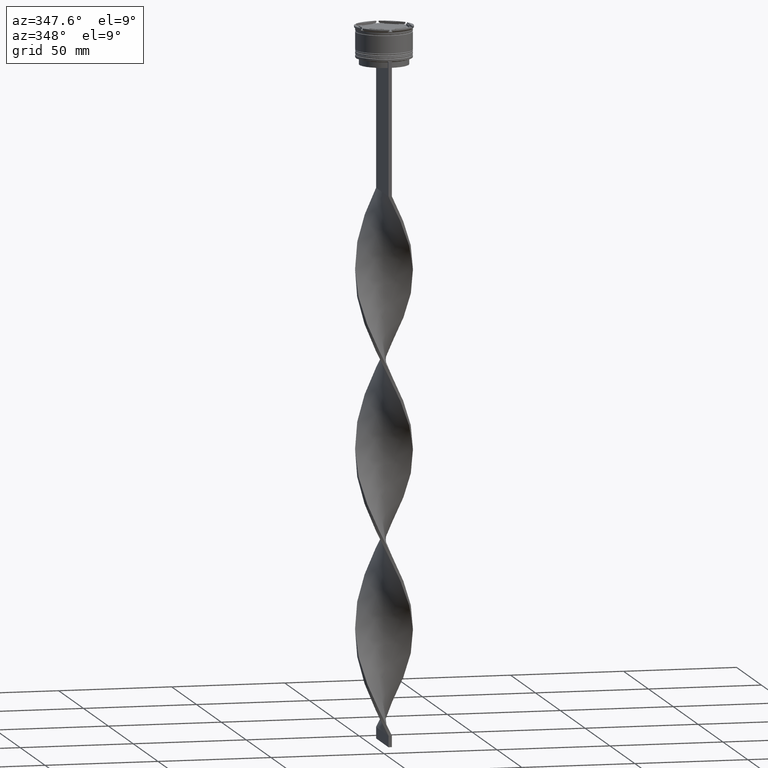
[diagram: clean part render]
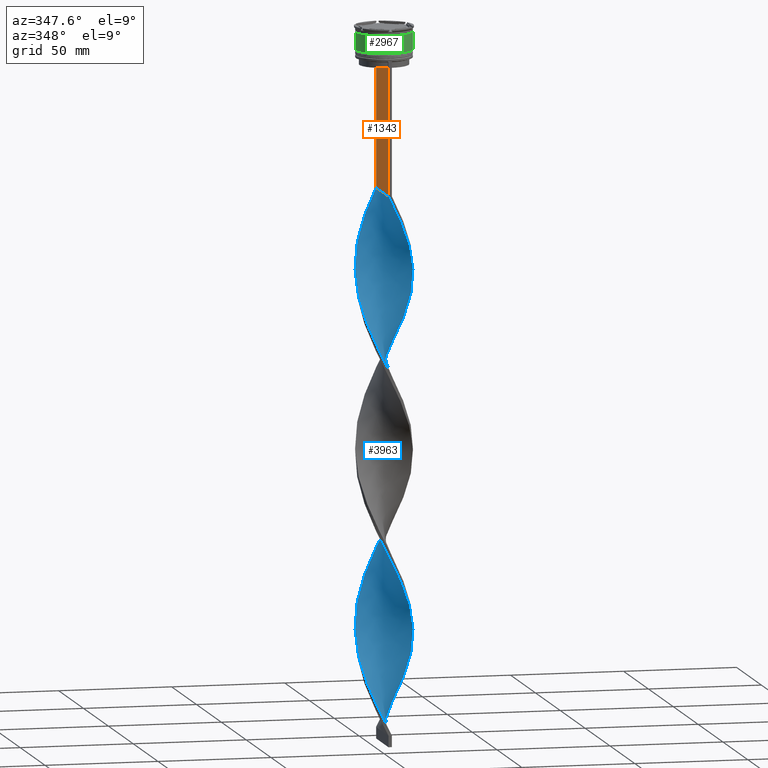
[diagram: same view with three faces highlighted in distinct colors, each labeled with its STEP entity id]
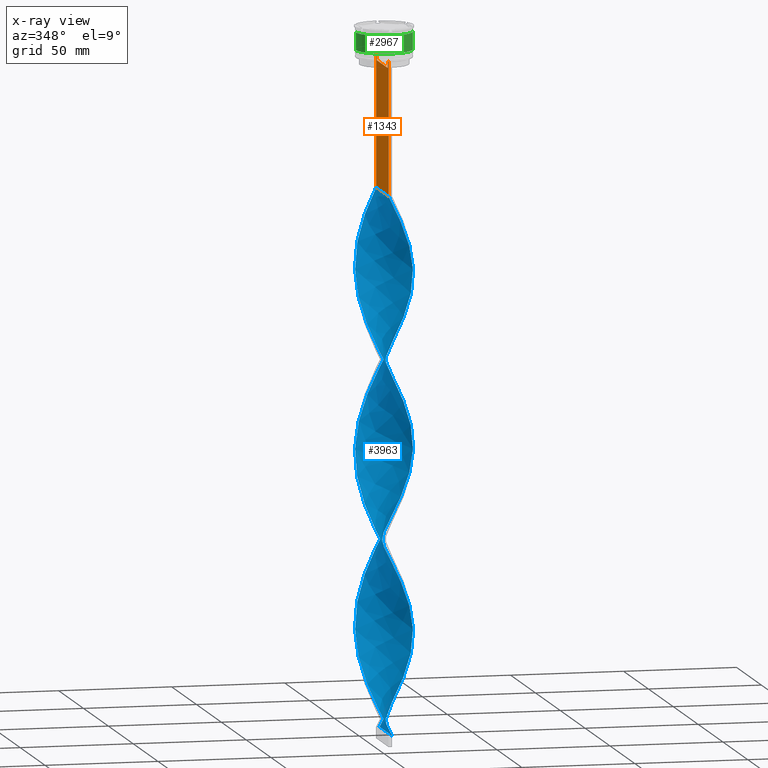
[diagram: x-ray of the same camera — body ghosted, the three highlighted faces saturated]
A machine part, auxiliary view with three faces highlighted in distinct colors.
The next image is the same camera in x-ray (body ghosted, the three faces saturated) — at least one of them is partly hidden behind the body in this view.
Their STEP definitions:

[orange] entity #1343 — the highlighted planar face has unit normal (-1, 0, 0).
#16 = VERTEX_POINT ( 'NONE', #4189 ) ;
#28 = VERTEX_POINT ( 'NONE', #379 ) ;
#39 = VECTOR ( 'NONE', #1239, 1000.000000000000000 ) ;
#174 = ORIENTED_EDGE ( 'NONE', *, *, #4421, .F. ) ;
#183 = CARTESIAN_POINT ( 'NONE',  ( -0.7499999999999997780, 10.87416663473574019, -17.00000000000000000 ) ) ;
#211 = CARTESIAN_POINT ( 'NONE',  ( -0.7499999999999997780, 10.90000000000000213, -17.00000000000000000 ) ) ;
#231 = B_SPLINE_CURVE_WITH_KNOTS ( 'NONE', 3,
 ( #659, #3836, #1739, #3411 ),
 .UNSPECIFIED., .F., .F.,
 ( 4, 4 ),
 ( 0.01936090553552769281, 0.02006881572333104116 ),
 .UNSPECIFIED. ) ;
#362 = CARTESIAN_POINT ( 'NONE',  ( -0.7499999999999997780, -10.87416663473574374, 0.000000000000000000 ) ) ;
#375 = ORIENTED_EDGE ( 'NONE', *, *, #700, .F. ) ;
#379 = CARTESIAN_POINT ( 'NONE',  ( -0.7499999999999997780, 12.37729776647553059, -14.00000000000000178 ) ) ;
#388 = ORIENTED_EDGE ( 'NONE', *, *, #1349, .F. ) ;
#475 = VECTOR ( 'NONE', #2064, 1000.000000000000000 ) ;
#498 = CARTESIAN_POINT ( 'NONE',  ( -0.7499999999999997780, 11.37530219378809093, -14.00000000000000178 ) ) ;
#655 = CARTESIAN_POINT ( 'NONE',  ( -0.7499999999999997780, 12.50000000000000000, -14.00000000000000178 ) ) ;
#659 = CARTESIAN_POINT ( 'NONE',  ( -0.7499999999999997780, 11.37530219378809093, -14.00000000000000178 ) ) ;
#700 = EDGE_CURVE ( 'NONE', #4413, #3392, #1957, .T. ) ;
#712 = DIRECTION ( 'NONE',  ( 0.000000000000000000, -1.000000000000000000, 0.000000000000000000 ) ) ;
#820 = VERTEX_POINT ( 'NONE', #3285 ) ;
#983 = ORIENTED_EDGE ( 'NONE', *, *, #2213, .F. ) ;
#1034 = CARTESIAN_POINT ( 'NONE',  ( -0.7499999999999997780, -12.50000000000000000, -14.00000000000000178 ) ) ;
#1086 = EDGE_CURVE ( 'NONE', #16, #3574, #3620, .T. ) ;
#1104 = VERTEX_POINT ( 'NONE', #1870 ) ;
#1128 = VECTOR ( 'NONE', #2248, 1000.000000000000000 ) ;
#1143 = PLANE ( 'NONE',  #2079 ) ;
#1239 = DIRECTION ( 'NONE',  ( 0.000000000000000000, -1.000000000000000000, 0.000000000000000000 ) ) ;
#1254 = DIRECTION ( 'NONE',  ( 0.000000000000000000, 0.000000000000000000, -1.000000000000000000 ) ) ;
#1314 = CARTESIAN_POINT ( 'NONE',  ( -0.7499999999999997780, -11.04122051801870619, -14.33334204001847745 ) ) ;
#1343 = ADVANCED_FACE ( 'NONE', ( #3339 ), #1143, .T. ) ;
#1349 = EDGE_CURVE ( 'NONE', #1527, #16, #1974, .T. ) ;
#1353 = LINE ( 'NONE', #362, #475 ) ;
#1482 = LINE ( 'NONE', #1758, #2016 ) ;
#1483 = VECTOR ( 'NONE', #3000, 1000.000000000000000 ) ;
#1505 = VECTOR ( 'NONE', #2825, 1000.000000000000000 ) ;
#1527 = VERTEX_POINT ( 'NONE', #1034 ) ;
#1603 = CARTESIAN_POINT ( 'NONE',  ( -0.7499999999999997780, -12.50000000000000000, 11.04495957273638673 ) ) ;
#1608 = CARTESIAN_POINT ( 'NONE',  ( -0.7499999999999997780, 10.87416663473574374, 0.000000000000000000 ) ) ;
#1611 = ORIENTED_EDGE ( 'NONE', *, *, #2355, .F. ) ;
#1739 = CARTESIAN_POINT ( 'NONE',  ( -0.7499999999999997780, 11.04122051153452055, -14.33334204648729582 ) ) ;
#1758 = CARTESIAN_POINT ( 'NONE',  ( -0.7499999999999997780, -12.50000000000000000, -14.00000000000000178 ) ) ;
#1796 = VECTOR ( 'NONE', #712, 1000.000000000000000 ) ;
#1870 = CARTESIAN_POINT ( 'NONE',  ( -0.7499999999999997780, -10.87416663473574374, -14.50000000000000000 ) ) ;
#1941 = EDGE_CURVE ( 'NONE', #2282, #4413, #231, .T. ) ;
#1957 = LINE ( 'NONE', #1608, #1483 ) ;
#1974 = LINE ( 'NONE', #1603, #3384 ) ;
#1985 = CARTESIAN_POINT ( 'NONE',  ( -0.7499999999999997780, -10.87416663473574374, -14.50000000000000000 ) ) ;
#1992 = ORIENTED_EDGE ( 'NONE', *, *, #3828, .F. ) ;
#2016 = VECTOR ( 'NONE', #2878, 1000.000000000000000 ) ;
#2035 = CARTESIAN_POINT ( 'NONE',  ( -0.7499999999999997780, -11.37530219378809093, -14.00000000000000178 ) ) ;
#2038 = LINE ( 'NONE', #2712, #1128 ) ;
#2064 = DIRECTION ( 'NONE',  ( -0.000000000000000000, -0.000000000000000000, 1.000000000000000000 ) ) ;
#2079 = AXIS2_PLACEMENT_3D ( 'NONE', #2544, #3927, #4372 ) ;
#2213 = EDGE_CURVE ( 'NONE', #2929, #3650, #1482, .T. ) ;
#2248 = DIRECTION ( 'NONE',  ( 0.000000000000000000, -1.000000000000000000, 0.000000000000000000 ) ) ;
#2282 = VERTEX_POINT ( 'NONE', #498 ) ;
#2293 = EDGE_CURVE ( 'NONE', #3715, #28, #2038, .T. ) ;
#2300 = CARTESIAN_POINT ( 'NONE',  ( -0.7499999999999997780, 12.50000000000000000, 11.04495957273638673 ) ) ;
#2355 = EDGE_CURVE ( 'NONE', #3392, #820, #3639, .T. ) ;
#2436 = CARTESIAN_POINT ( 'NONE',  ( -0.7499999999999997780, -12.50000000000000000, -14.00000000000000178 ) ) ;
#2544 = CARTESIAN_POINT ( 'NONE',  ( -0.7499999999999997780, -12.50000000000000000, 11.04495957273638673 ) ) ;
#2620 = DIRECTION ( 'NONE',  ( 0.000000000000000000, 1.000000000000000000, 0.000000000000000000 ) ) ;
#2661 = CARTESIAN_POINT ( 'NONE',  ( -0.7499999999999997780, -12.50000000000000000, -73.00000000000001421 ) ) ;
#2682 = LINE ( 'NONE', #2300, #3607 ) ;
#2712 = CARTESIAN_POINT ( 'NONE',  ( -0.7499999999999997780, -12.50000000000000000, -14.00000000000000178 ) ) ;
#2730 = CARTESIAN_POINT ( 'NONE',  ( -0.7499999999999997780, -11.20826532207830439, -14.16667499063191471 ) ) ;
#2741 = CARTESIAN_POINT ( 'NONE',  ( -0.7499999999999997780, -12.37729776647553059, -14.00000000000000178 ) ) ;
#2789 = EDGE_CURVE ( 'NONE', #3715, #3574, #2682, .T. ) ;
#2798 = CARTESIAN_POINT ( 'NONE',  ( -0.7499999999999997780, -12.50000000000000000, -14.00000000000000178 ) ) ;
#2825 = DIRECTION ( 'NONE',  ( 0.000000000000000000, -1.000000000000000000, 0.000000000000000000 ) ) ;
#2878 = DIRECTION ( 'NONE',  ( 0.000000000000000000, -1.000000000000000000, 0.000000000000000000 ) ) ;
#2908 = EDGE_LOOP ( 'NONE', ( #3554, #1992, #3354, #3487, #3101, #388, #3264, #983, #174, #3681, #1611, #375 ) ) ;
#2929 = VERTEX_POINT ( 'NONE', #4440 ) ;
#2999 = DIRECTION ( 'NONE',  ( 0.000000000000000000, 0.000000000000000000, -1.000000000000000000 ) ) ;
#3000 = DIRECTION ( 'NONE',  ( 0.000000000000000000, 0.000000000000000000, -1.000000000000000000 ) ) ;
#3101 = ORIENTED_EDGE ( 'NONE', *, *, #1086, .F. ) ;
#3107 = B_SPLINE_CURVE_WITH_KNOTS ( 'NONE', 3,
 ( #1985, #1314, #2730, #2035 ),
 .UNSPECIFIED., .F., .F.,
 ( 4, 4 ),
 ( 0.05009718908159448147, 0.05081156920313960323 ),
 .UNSPECIFIED. ) ;
#3125 = EDGE_CURVE ( 'NONE', #820, #1104, #1353, .T. ) ;
#3128 = CARTESIAN_POINT ( 'NONE',  ( -0.7499999999999997780, 12.50000000000000000, -73.00000000000001421 ) ) ;
#3239 = VECTOR ( 'NONE', #2620, 1000.000000000000000 ) ;
#3264 = ORIENTED_EDGE ( 'NONE', *, *, #3959, .F. ) ;
#3285 = CARTESIAN_POINT ( 'NONE',  ( -0.7499999999999997780, -10.87416663473574019, -17.00000000000000000 ) ) ;
#3339 = FACE_OUTER_BOUND ( 'NONE', #2908, .T. ) ;
#3354 = ORIENTED_EDGE ( 'NONE', *, *, #2293, .F. ) ;
#3384 = VECTOR ( 'NONE', #1254, 1000.000000000000000 ) ;
#3392 = VERTEX_POINT ( 'NONE', #183 ) ;
#3411 = CARTESIAN_POINT ( 'NONE',  ( -0.7499999999999997780, 10.87416663473574374, -14.50000000000000000 ) ) ;
#3439 = CARTESIAN_POINT ( 'NONE',  ( -0.7499999999999997780, 10.87416663473574374, -14.50000000000000000 ) ) ;
#3487 = ORIENTED_EDGE ( 'NONE', *, *, #2789, .T. ) ;
#3554 = ORIENTED_EDGE ( 'NONE', *, *, #1941, .F. ) ;
#3574 = VERTEX_POINT ( 'NONE', #3128 ) ;
#3607 = VECTOR ( 'NONE', #2999, 1000.000000000000000 ) ;
#3620 = LINE ( 'NONE', #2661, #3239 ) ;
#3639 = LINE ( 'NONE', #211, #39 ) ;
#3650 = VERTEX_POINT ( 'NONE', #2741 ) ;
#3681 = ORIENTED_EDGE ( 'NONE', *, *, #3125, .F. ) ;
#3715 = VERTEX_POINT ( 'NONE', #655 ) ;
#3828 = EDGE_CURVE ( 'NONE', #28, #2282, #4220, .T. ) ;
#3836 = CARTESIAN_POINT ( 'NONE',  ( -0.7499999999999997780, 11.20826531587977648, -14.16667499681701514 ) ) ;
#3927 = DIRECTION ( 'NONE',  ( -1.000000000000000000, 0.000000000000000000, 0.000000000000000000 ) ) ;
#3959 = EDGE_CURVE ( 'NONE', #3650, #1527, #4243, .T. ) ;
#4189 = CARTESIAN_POINT ( 'NONE',  ( -0.7499999999999997780, -12.50000000000000000, -73.00000000000001421 ) ) ;
#4220 = LINE ( 'NONE', #2798, #1796 ) ;
#4243 = LINE ( 'NONE', #2436, #1505 ) ;
#4372 = DIRECTION ( 'NONE',  ( 0.000000000000000000, 0.000000000000000000, 1.000000000000000000 ) ) ;
#4413 = VERTEX_POINT ( 'NONE', #3439 ) ;
#4421 = EDGE_CURVE ( 'NONE', #1104, #2929, #3107, .T. ) ;
#4440 = CARTESIAN_POINT ( 'NONE',  ( -0.7499999999999997780, -11.37530219378809093, -14.00000000000000178 ) ) ;

[blue] entity #3963 — the highlighted face is a freeform B-spline surface patch.
#4 = CARTESIAN_POINT ( 'NONE',  ( 1.733771335307729089, -12.44097371988153711, -153.6333333333333826 ) ) ;
#8 = CARTESIAN_POINT ( 'NONE',  ( 12.11996919947063311, 3.149420042465477021, -120.2000000000000028 ) ) ;
#13 = CARTESIAN_POINT ( 'NONE',  ( -5.006626353603061297, -11.47807442715925852, -297.2000000000000455 ) ) ;
#16 = VERTEX_POINT ( 'NONE', #4189 ) ;
#24 = CARTESIAN_POINT ( 'NONE',  ( -9.045873944214960716, -8.715271351328697236, -130.0333333333333314 ) ) ;
#35 = CARTESIAN_POINT ( 'NONE',  ( -7.192885447545553923, 10.29787303672002352, -244.0999999999999943 ) ) ;
#50 = CARTESIAN_POINT ( 'NONE',  ( -11.29630431837985682, -5.493386832225668037, -122.1666666666666998 ) ) ;
#54 = CARTESIAN_POINT ( 'NONE',  ( -11.65644370790820794, 4.576004816908209705, -183.1333333333333258 ) ) ;
#58 = CARTESIAN_POINT ( 'NONE',  ( 7.571135413668909742, -10.02305835011481427, -90.70000000000001705 ) ) ;
#59 = CARTESIAN_POINT ( 'NONE',  ( -6.343136139885610092, 10.79708867754994017, -242.1333333333333258 ) ) ;
#76 = CARTESIAN_POINT ( 'NONE',  ( -4.103282305125620866, 11.87210446662093766, -161.5000000000000000 ) ) ;
#80 = CARTESIAN_POINT ( 'NONE',  ( -12.22877840865904986, -2.696197068449238454, -273.5999999999999659 ) ) ;
#99 = CARTESIAN_POINT ( 'NONE',  ( 12.55902628011846645, 0.2337713353077299772, -271.6333333333332689 ) ) ;
#103 = CARTESIAN_POINT ( 'NONE',  ( -9.671873490467488566, 7.954078399437126023, -175.2666666666666799 ) ) ;
#104 = CARTESIAN_POINT ( 'NONE',  ( -5.493386832225668925, 11.29630431837985682, -240.1666666666666856 ) ) ;
#121 = CARTESIAN_POINT ( 'NONE',  ( -7.192885447545554811, 10.29787303672002530, -244.0999999999999659 ) ) ;
#126 = CARTESIAN_POINT ( 'NONE',  ( -7.954078399437126912, -9.671873490467486789, -214.5999999999999943 ) ) ;
#129 = CARTESIAN_POINT ( 'NONE',  ( 5.493386832225669814, 11.29630431837985682, -141.8333333333333144 ) ) ;
#147 = CARTESIAN_POINT ( 'NONE',  ( -9.671873490467488566, 7.954078399437126023, -175.2666666666666799 ) ) ;
#150 = CARTESIAN_POINT ( 'NONE',  ( -12.46343010621939484, -1.214664557556530244, -194.9333333333333371 ) ) ;
#167 = CARTESIAN_POINT ( 'NONE',  ( 2.696197068449240231, 12.22877840865904808, -305.0666666666666629 ) ) ;
#171 = CARTESIAN_POINT ( 'NONE',  ( -10.02305835011481427, -7.571135413668914182, -208.7000000000000171 ) ) ;
#180 = CARTESIAN_POINT ( 'NONE',  ( -7.192885447545553923, 10.29787303672002352, -86.76666666666666572 ) ) ;
#193 = CARTESIAN_POINT ( 'NONE',  ( -12.44097371988153533, 1.733771335307738415, -189.0333333333333314 ) ) ;
#203 = CARTESIAN_POINT ( 'NONE',  ( -10.79708867754994017, -6.343136139885610092, -124.1333333333333400 ) ) ;
#214 = CARTESIAN_POINT ( 'NONE',  ( 2.195557779805334508, -12.36783393232032502, -236.2333333333333769 ) ) ;
#222 = CARTESIAN_POINT ( 'NONE',  ( 11.08404438769758471, -5.909970402080495511, -177.2333333333333485 ) ) ;
#230 = CARTESIAN_POINT ( 'NONE',  ( 4.576004816908209705, 11.65644370790820794, -301.1333333333333258 ) ) ;
#234 = CARTESIAN_POINT ( 'NONE',  ( 6.343136139885611868, 10.79708867754993840, -297.2000000000000455 ) ) ;
#261 = CARTESIAN_POINT ( 'NONE',  ( 12.22877840865904986, -2.696197068449239787, -265.7333333333333485 ) ) ;
#267 = CARTESIAN_POINT ( 'NONE',  ( 0.7499999999999983347, -12.50000000000000000, -309.0000000000000000 ) ) ;
#283 = CARTESIAN_POINT ( 'NONE',  ( -12.36783393232032502, 2.195557779805335397, -106.4333333333333513 ) ) ;
#288 = CARTESIAN_POINT ( 'NONE',  ( 7.192885447545555699, 10.29787303672002174, -137.9000000000000625 ) ) ;
#301 = CARTESIAN_POINT ( 'NONE',  ( -4.576004816908207928, 11.65644370790820794, -80.86666666666667425 ) ) ;
#308 = CARTESIAN_POINT ( 'NONE',  ( -12.01658309743656261, -3.658622801590747819, -118.2333333333333485 ) ) ;
#322 = CARTESIAN_POINT ( 'NONE',  ( 5.493386832225667149, -11.29630431837985860, -161.5000000000000000 ) ) ;
#326 = CARTESIAN_POINT ( 'NONE',  ( 7.954078399437126023, 9.671873490467488566, -135.9333333333333371 ) ) ;
#331 = CARTESIAN_POINT ( 'NONE',  ( -12.36783393232032502, 2.195557779805335841, -106.4333333333333513 ) ) ;
#346 = CARTESIAN_POINT ( 'NONE',  ( 9.045873944214957163, 8.715271351328700788, -208.7000000000000171 ) ) ;
#350 = CARTESIAN_POINT ( 'NONE',  ( 10.29787303672002174, -7.192885447545555699, -98.56666666666669130 ) ) ;
#352 = CARTESIAN_POINT ( 'NONE',  ( 1.214664557556532909, -12.46343010621939484, -76.93333333333333712 ) ) ;
#353 = CARTESIAN_POINT ( 'NONE',  ( 3.149420042465480574, 12.11996919947063134, -222.4666666666666686 ) ) ;
#364 = CARTESIAN_POINT ( 'NONE',  ( -5.909970402080499063, -11.08404438769758116, -137.9000000000000625 ) ) ;
#368 = CARTESIAN_POINT ( 'NONE',  ( 1.214664557556532909, -12.46343010621939484, -76.93333333333333712 ) ) ;
#372 = CARTESIAN_POINT ( 'NONE',  ( -11.29630431837985682, -5.493386832225668037, -279.4999999999999432 ) ) ;
#385 = CARTESIAN_POINT ( 'NONE',  ( 10.29787303672002885, 7.192885447545549482, -204.7666666666666799 ) ) ;
#391 = CARTESIAN_POINT ( 'NONE',  ( 11.29630431837985682, -5.493386832225669814, -259.8333333333334281 ) ) ;
#396 = CARTESIAN_POINT ( 'NONE',  ( -11.08404438769758116, 5.909970402080499952, -255.9000000000000625 ) ) ;
#413 = CARTESIAN_POINT ( 'NONE',  ( 12.50000000000000000, 0.7499999999999975575, -191.0000000000000000 ) ) ;
#417 = CARTESIAN_POINT ( 'NONE',  ( -10.79708867754993840, 6.343136139885611868, -179.1999999999999886 ) ) ;
#422 = CARTESIAN_POINT ( 'NONE',  ( -1.214664557556534463, -12.46343010621939307, -305.0666666666666629 ) ) ;
#434 = CARTESIAN_POINT ( 'NONE',  ( -3.658622801590747819, 12.01658309743656083, -236.2333333333333769 ) ) ;
#438 = CARTESIAN_POINT ( 'NONE',  ( 3.149420042465477465, -12.11996919947063134, -238.1999999999999886 ) ) ;
#440 = CARTESIAN_POINT ( 'NONE',  ( -10.79708867754993840, 6.343136139885611868, -179.1999999999999886 ) ) ;
#441 = CARTESIAN_POINT ( 'NONE',  ( 9.045873944214957163, 8.715271351328700788, -208.7000000000000171 ) ) ;
#454 = CARTESIAN_POINT ( 'NONE',  ( -8.715271351328697236, 9.045873944214960716, -248.0333333333333314 ) ) ;
#458 = CARTESIAN_POINT ( 'NONE',  ( 10.79708867754993840, -6.343136139885610980, -257.8666666666666742 ) ) ;
#462 = CARTESIAN_POINT ( 'NONE',  ( 1.733771335307732420, 12.44097371988153711, -149.7000000000000455 ) ) ;
#481 = CARTESIAN_POINT ( 'NONE',  ( -9.369164850721755755, 8.308504678941934785, -250.0000000000000000 ) ) ;
#486 = CARTESIAN_POINT ( 'NONE',  ( -12.50000000000000000, 0.7500000000000021094, -191.0000000000000000 ) ) ;
#489 = CARTESIAN_POINT ( 'NONE',  ( -7.571135413668909742, 10.02305835011481605, -169.3666666666667027 ) ) ;
#510 = CARTESIAN_POINT ( 'NONE',  ( 10.29787303672002352, -7.192885447545556588, -98.56666666666669130 ) ) ;
#527 = CARTESIAN_POINT ( 'NONE',  ( -9.045873944214955387, 8.715271351328704341, -173.3000000000000114 ) ) ;
#540 = CARTESIAN_POINT ( 'NONE',  ( 0.7499999999999983347, -12.50000000000000000, -151.6666666666666856 ) ) ;
#553 = CARTESIAN_POINT ( 'NONE',  ( -3.658622801590747819, 12.01658309743656083, -78.90000000000003411 ) ) ;
#564 = CARTESIAN_POINT ( 'NONE',  ( 3.658622801590746931, -12.01658309743656261, -157.5666666666666913 ) ) ;
#575 = CARTESIAN_POINT ( 'NONE',  ( 11.29630431837985682, -5.493386832225669814, -259.8333333333334281 ) ) ;
#586 = CARTESIAN_POINT ( 'NONE',  ( -11.08404438769758116, 5.909970402080499952, -98.56666666666669130 ) ) ;
#597 = CARTESIAN_POINT ( 'NONE',  ( 12.55902628011846645, 0.2337713353077299772, -271.6333333333332689 ) ) ;
#623 = CARTESIAN_POINT ( 'NONE',  ( 7.954078399437126023, 9.671873490467488566, -293.2666666666666515 ) ) ;
#643 = CARTESIAN_POINT ( 'NONE',  ( -8.715271351328697236, 9.045873944214960716, -90.70000000000001705 ) ) ;
#648 = CARTESIAN_POINT ( 'NONE',  ( 4.576004816908209705, 11.65644370790820794, -143.7999999999999829 ) ) ;
#663 = CARTESIAN_POINT ( 'NONE',  ( 9.671873490467490342, 7.954078399437122471, -206.7333333333333201 ) ) ;
#667 = CARTESIAN_POINT ( 'NONE',  ( 5.909970402080498175, -11.08404438769758293, -86.76666666666666572 ) ) ;
#671 = CARTESIAN_POINT ( 'NONE',  ( -12.50000000000000000, -0.7499999999999990008, -112.3333333333333428 ) ) ;
#685 = CARTESIAN_POINT ( 'NONE',  ( -0.7499999999999997780, 12.50000000000000000, -230.3333333333333428 ) ) ;
#691 = CARTESIAN_POINT ( 'NONE',  ( 0.2337713353077308653, -12.55902628011846645, -74.96666666666668277 ) ) ;
#693 = CARTESIAN_POINT ( 'NONE',  ( -5.909970402080499952, -11.08404438769758116, -137.9000000000000625 ) ) ;
#706 = CARTESIAN_POINT ( 'NONE',  ( 11.47807442715925852, -5.006626353603061297, -179.1999999999999886 ) ) ;
#710 = CARTESIAN_POINT ( 'NONE',  ( 9.671873490467490342, -7.954078399437124247, -96.60000000000000853 ) ) ;
#713 = CARTESIAN_POINT ( 'NONE',  ( -8.715271351328697236, 9.045873944214960716, -248.0333333333333599 ) ) ;
#725 = CARTESIAN_POINT ( 'NONE',  ( 11.65644370790820972, 4.576004816908206152, -198.8666666666666742 ) ) ;
#729 = CARTESIAN_POINT ( 'NONE',  ( 12.46343010621939484, 1.214664557556532021, -116.2666666666666657 ) ) ;
#732 = CARTESIAN_POINT ( 'NONE',  ( 4.103282305125622642, -11.87210446662093588, -82.83333333333335702 ) ) ;
#733 = CARTESIAN_POINT ( 'NONE',  ( 0.2337713353077395251, 12.55902628011846822, -228.3666666666666742 ) ) ;
#748 = CARTESIAN_POINT ( 'NONE',  ( 7.954078399437124247, -9.671873490467490342, -167.4000000000000057 ) ) ;
#753 = CARTESIAN_POINT ( 'NONE',  ( -12.11996919947063311, -3.149420042465475689, -198.8666666666666742 ) ) ;
#759 = CARTESIAN_POINT ( 'NONE',  ( -3.149420042465479241, -12.11996919947063134, -301.1333333333333258 ) ) ;
#775 = CARTESIAN_POINT ( 'NONE',  ( -6.740552907874705291, -10.55355136890619683, -293.2666666666666515 ) ) ;
#780 = CARTESIAN_POINT ( 'NONE',  ( -10.55355136890619860, -6.740552907874700850, -206.7333333333333201 ) ) ;
#783 = CARTESIAN_POINT ( 'NONE',  ( 12.55902628011846645, 0.2337713353077299772, -114.3000000000000398 ) ) ;
#784 = CARTESIAN_POINT ( 'NONE',  ( 12.46343010621939307, -1.214664557556534907, -187.0666666666666629 ) ) ;
#796 = CARTESIAN_POINT ( 'NONE',  ( -4.103282305125623530, -11.87210446662093588, -299.1666666666666856 ) ) ;
#800 = CARTESIAN_POINT ( 'NONE',  ( 12.11996919947063311, 3.149420042465477021, -277.5333333333333030 ) ) ;
#804 = CARTESIAN_POINT ( 'NONE',  ( 6.343136139885611868, 10.79708867754993840, -139.8666666666666742 ) ) ;
#818 = CARTESIAN_POINT ( 'NONE',  ( -12.46343010621939484, 1.214664557556533353, -265.7333333333333485 ) ) ;
#823 = CARTESIAN_POINT ( 'NONE',  ( -7.571135413668910630, 10.02305835011481605, -169.3666666666667027 ) ) ;
#827 = CARTESIAN_POINT ( 'NONE',  ( 12.50000000000000000, -0.7500000000000005551, -112.3333333333333428 ) ) ;
#850 = CARTESIAN_POINT ( 'NONE',  ( 9.045873944214960716, -8.715271351328697236, -251.9666666666666686 ) ) ;
#853 = CARTESIAN_POINT ( 'NONE',  ( 8.715271351328700788, 9.045873944214958939, -133.9666666666666686 ) ) ;
#875 = CARTESIAN_POINT ( 'NONE',  ( -0.2337713353077293388, 12.55902628011846645, -153.6333333333333826 ) ) ;
#882 = CARTESIAN_POINT ( 'NONE',  ( -1.214664557556534463, -12.46343010621939307, -147.7333333333333201 ) ) ;
#894 = CARTESIAN_POINT ( 'NONE',  ( 4.103282305125622642, -11.87210446662093588, -240.1666666666667140 ) ) ;
#907 = CARTESIAN_POINT ( 'NONE',  ( 1.733771335307729089, -12.44097371988153711, -153.6333333333333826 ) ) ;
#923 = CARTESIAN_POINT ( 'NONE',  ( -11.47807442715925852, 5.006626353603060409, -100.5333333333333314 ) ) ;
#943 = CARTESIAN_POINT ( 'NONE',  ( 11.87210446662093588, 4.103282305125621754, -279.4999999999999432 ) ) ;
#953 = EDGE_CURVE ( 'NONE', #3574, #4468, #2506, .T. ) ;
#964 = CARTESIAN_POINT ( 'NONE',  ( -7.192885447545554811, 10.29787303672002530, -86.76666666666666572 ) ) ;
#988 = CARTESIAN_POINT ( 'NONE',  ( 12.11996919947063311, 3.149420042465477021, -277.5333333333333030 ) ) ;
#1009 = CARTESIAN_POINT ( 'NONE',  ( 11.87210446662093410, -4.103282305125628859, -181.1666666666667140 ) ) ;
#1013 = CARTESIAN_POINT ( 'NONE',  ( 11.08404438769758293, 5.909970402080498175, -126.1000000000000227 ) ) ;
#1016 = CARTESIAN_POINT ( 'NONE',  ( 8.715271351328699012, -9.045873944214962492, -169.3666666666667027 ) ) ;
#1027 = CARTESIAN_POINT ( 'NONE',  ( 12.36783393232032680, -2.195557779805332288, -185.0999999999999659 ) ) ;
#1032 = CARTESIAN_POINT ( 'NONE',  ( -3.149420042465476133, 12.11996919947063311, -159.5333333333333314 ) ) ;
#1037 = CARTESIAN_POINT ( 'NONE',  ( -6.343136139885610092, 10.79708867754994017, -84.80000000000001137 ) ) ;
#1051 = CARTESIAN_POINT ( 'NONE',  ( -1.733771335307730643, 12.44097371988153711, -232.3000000000000114 ) ) ;
#1055 = CARTESIAN_POINT ( 'NONE',  ( 10.02305835011481427, 7.571135413668910630, -130.0333333333333314 ) ) ;
#1061 = CARTESIAN_POINT ( 'NONE',  ( -12.44097371988153711, -1.733771335307729755, -271.6333333333332689 ) ) ;
#1074 = CARTESIAN_POINT ( 'NONE',  ( 11.29630431837985505, 5.493386832225671590, -200.8333333333333428 ) ) ;
#1078 = CARTESIAN_POINT ( 'NONE',  ( 12.01658309743656083, -3.658622801590749152, -106.4333333333333513 ) ) ;
#1081 = CARTESIAN_POINT ( 'NONE',  ( -12.36783393232032502, 2.195557779805335841, -263.7666666666667084 ) ) ;
#1086 = EDGE_CURVE ( 'NONE', #16, #3574, #3620, .T. ) ;
#1095 = CARTESIAN_POINT ( 'NONE',  ( -11.65644370790820972, -4.576004816908207040, -120.2000000000000028 ) ) ;
#1099 = CARTESIAN_POINT ( 'NONE',  ( -6.343136139885612756, -10.79708867754993840, -218.5333333333333314 ) ) ;
#1103 = CARTESIAN_POINT ( 'NONE',  ( -12.50000000000000000, -0.7499999999999990008, -269.6666666666666856 ) ) ;
#1122 = CARTESIAN_POINT ( 'NONE',  ( 12.44097371988153711, -1.733771335307731531, -267.6999999999999318 ) ) ;
#1127 = CARTESIAN_POINT ( 'NONE',  ( 4.103282305125630636, 11.87210446662093410, -220.5000000000000284 ) ) ;
#1142 = CARTESIAN_POINT ( 'NONE',  ( -11.87210446662093588, 4.103282305125623530, -259.8333333333334281 ) ) ;
#1147 = CARTESIAN_POINT ( 'NONE',  ( 6.740552907874703514, -10.55355136890619860, -246.0666666666666629 ) ) ;
#1150 = CARTESIAN_POINT ( 'NONE',  ( -12.01658309743656261, 3.658622801590745155, -185.0999999999999659 ) ) ;
#1151 = CARTESIAN_POINT ( 'NONE',  ( -12.46343010621939484, 1.214664557556533353, -265.7333333333333485 ) ) ;
#1166 = CARTESIAN_POINT ( 'NONE',  ( -12.36783393232032857, -2.195557779805327403, -196.9000000000000057 ) ) ;
#1170 = CARTESIAN_POINT ( 'NONE',  ( 12.22877840865904986, -2.696197068449239787, -108.3999999999999915 ) ) ;
#1184 = CARTESIAN_POINT ( 'NONE',  ( -2.696197068449239342, 12.22877840865904986, -234.2666666666666515 ) ) ;
#1189 = CARTESIAN_POINT ( 'NONE',  ( -9.045873944214955387, 8.715271351328704341, -173.3000000000000114 ) ) ;
#1193 = CARTESIAN_POINT ( 'NONE',  ( 7.192885447545556588, 10.29787303672002352, -137.9000000000000625 ) ) ;
#1221 = CARTESIAN_POINT ( 'NONE',  ( 11.29630431837985682, -5.493386832225669814, -102.5000000000000000 ) ) ;
#1230 = CARTESIAN_POINT ( 'NONE',  ( -8.715271351328697236, 9.045873944214960716, -90.70000000000001705 ) ) ;
#1242 = CARTESIAN_POINT ( 'NONE',  ( 11.87210446662093588, 4.103282305125621754, -122.1666666666666998 ) ) ;
#1261 = CARTESIAN_POINT ( 'NONE',  ( 7.192885447545556588, 10.29787303672002352, -295.2333333333332916 ) ) ;
#1273 = CARTESIAN_POINT ( 'NONE',  ( 7.954078399437124247, -9.671873490467490342, -167.4000000000000057 ) ) ;
#1283 = CARTESIAN_POINT ( 'NONE',  ( 3.658622801590749152, 12.01658309743656083, -303.0999999999999659 ) ) ;
#1287 = CARTESIAN_POINT ( 'NONE',  ( 6.740552907874703514, -10.55355136890619860, -246.0666666666666629 ) ) ;
#1306 = CARTESIAN_POINT ( 'NONE',  ( 0.7500000000000013323, 12.50000000000000000, -309.0000000000000000 ) ) ;
#1309 = CARTESIAN_POINT ( 'NONE',  ( 10.02305835011481427, 7.571135413668909742, -287.3666666666667311 ) ) ;
#1329 = CARTESIAN_POINT ( 'NONE',  ( -2.696197068449242007, -12.22877840865904808, -226.3999999999999773 ) ) ;
#1333 = CARTESIAN_POINT ( 'NONE',  ( 7.571135413668910630, -10.02305835011481427, -90.70000000000001705 ) ) ;
#1355 = CARTESIAN_POINT ( 'NONE',  ( 12.22877840865904986, 2.696197068449236678, -194.9333333333333371 ) ) ;
#1363 = CARTESIAN_POINT ( 'NONE',  ( -12.46343010621939484, 1.214664557556533353, -108.3999999999999915 ) ) ;
#1376 = CARTESIAN_POINT ( 'NONE',  ( -12.50000000000000000, -0.7499999999999990008, -112.3333333333333428 ) ) ;
#1380 = CARTESIAN_POINT ( 'NONE',  ( 6.740552907874703514, -10.55355136890619860, -88.73333333333334849 ) ) ;
#1383 = CARTESIAN_POINT ( 'NONE',  ( -10.02305835011481427, 7.571135413668910630, -94.63333333333335418 ) ) ;
#1393 = CARTESIAN_POINT ( 'NONE',  ( 4.576004816908206152, -11.65644370790820972, -159.5333333333333314 ) ) ;
#1398 = CARTESIAN_POINT ( 'NONE',  ( 2.195557779805334953, -12.36783393232032502, -78.90000000000001990 ) ) ;
#1401 = CARTESIAN_POINT ( 'NONE',  ( 7.571135413668918623, 10.02305835011481072, -212.6333333333333826 ) ) ;
#1418 = CARTESIAN_POINT ( 'NONE',  ( -5.006626353603061297, -11.47807442715925852, -139.8666666666666742 ) ) ;
#1422 = CARTESIAN_POINT ( 'NONE',  ( 10.79708867754993840, -6.343136139885610980, -100.5333333333333314 ) ) ;
#1429 = CARTESIAN_POINT ( 'NONE',  ( -10.55355136890619860, 6.740552907874703514, -253.9333333333333371 ) ) ;
#1430 = ORIENTED_EDGE ( 'NONE', *, *, #953, .T. ) ;
#1442 = CARTESIAN_POINT ( 'NONE',  ( -10.29787303672002530, -7.192885447545554811, -126.1000000000000369 ) ) ;
#1446 = CARTESIAN_POINT ( 'NONE',  ( 8.308504678941934785, -9.369164850721755755, -250.0000000000000000 ) ) ;
#1449 = CARTESIAN_POINT ( 'NONE',  ( 8.308504678941934785, -9.369164850721755755, -92.66666666666667140 ) ) ;
#1450 = CARTESIAN_POINT ( 'NONE',  ( -9.045873944214960716, -8.715271351328697236, -287.3666666666667311 ) ) ;
#1467 = CARTESIAN_POINT ( 'NONE',  ( -5.909970402080496399, 11.08404438769758293, -165.4333333333333371 ) ) ;
#1471 = CARTESIAN_POINT ( 'NONE',  ( 0.7499999999999983347, -12.50000000000000000, -309.0000000000000000 ) ) ;
#1491 = CARTESIAN_POINT ( 'NONE',  ( 5.006626353603059520, -11.47807442715926030, -242.1333333333333258 ) ) ;
#1495 = CARTESIAN_POINT ( 'NONE',  ( -9.369164850721755755, -8.308504678941931232, -210.6666666666666572 ) ) ;
#1496 = CARTESIAN_POINT ( 'NONE',  ( -7.954078399437124247, 9.671873490467490342, -246.0666666666666629 ) ) ;
#1513 = CARTESIAN_POINT ( 'NONE',  ( -10.79708867754994017, -6.343136139885610092, -281.4666666666666401 ) ) ;
#1517 = CARTESIAN_POINT ( 'NONE',  ( -8.308504678941933008, 9.369164850721755755, -171.3333333333333428 ) ) ;
#1522 = CARTESIAN_POINT ( 'NONE',  ( -11.29630431837985505, 5.493386832225676031, -181.1666666666667140 ) ) ;
#1538 = CARTESIAN_POINT ( 'NONE',  ( -12.44097371988153533, 1.733771335307738415, -189.0333333333333314 ) ) ;
#1541 = CARTESIAN_POINT ( 'NONE',  ( 9.045873944214960716, -8.715271351328697236, -94.63333333333335418 ) ) ;
#1547 =( BOUNDED_CURVE ( )  B_SPLINE_CURVE ( 2, ( #3501, #2433, #368, #1398, #3483, #1766, #3096, #667, #1380, #1333, #1701, #2821, #710, #350, #1422, #4198, #3818, #1078, #2794, #1746, #3864, #2729, #729, #3139, #8, #4173, #4470, #1013, #2135, #1055, #2457, #3800, #326, #288, #3844, #1726, #648, #1680, #3076, #4446, #4111, #4494, #3438, #2773, #1032, #76, #3589, #1467, #2205, #823, #1517, #1189, #147, #3184, #417, #3275, #54, #2841, #2230, #1538, #486, #3614, #3976, #1166, #753, #4239, #2931, #3911, #780, #1890, #3206, #4217, #126, #3883, #1099, #2567, #1791, #3568, #4306, #2183, #3930, #2499, #3520, #3950, #438, #2590, #1491, #2161, #1147, #3548, #1446, #850, #2862, #1839, #458, #391, #3227, #2525, #1815, #1122, #2547, #99, #2888, #4266, #800, #1865, #3253, #2911, #4287, #2256, #3342, #2325, #4062, #1624, #1955, #2657, #230, #1283, #167, #4419, #1306 ),
 .UNSPECIFIED., .F., .T. ) 
 B_SPLINE_CURVE_WITH_KNOTS ( ( 3, 2, 2, 2, 2, 2, 2, 2, 2, 2, 2, 2, 2, 2, 2, 2, 2, 2, 2, 2, 2, 2, 2, 2, 2, 2, 2, 2, 2, 2, 2, 2, 2, 2, 2, 2, 2, 2, 2, 2, 2, 2, 2, 2, 2, 2, 2, 2, 2, 2, 2, 2, 2, 2, 2, 2, 2, 2, 2, 2, 3 ),
 ( 0.000000000000000000, 0.01250000000000000243, 0.02500000000000000486, 0.03749999999999999861, 0.05000000000000000971, 0.06250000000000000000, 0.07499999999999999722, 0.08749999999999998057, 0.1000000000000000194, 0.1125000000000000028, 0.1250000000000000000, 0.1375000000000000111, 0.1499999999999999944, 0.1625000000000000056, 0.1749999999999999611, 0.1875000000000000000, 0.2000000000000000389, 0.2124999999999999944, 0.2250000000000000056, 0.2374999999999999611, 0.2500000000000000000, 0.2625000000000000111, 0.2750000000000000222, 0.2874999999999999778, 0.2999999999999999889, 0.3125000000000000000, 0.3250000000000000111, 0.3375000000000000777, 0.3499999999999999223, 0.3624999999999999889, 0.3750000000000000000, 0.3875000000000000111, 0.4000000000000000777, 0.4124999999999999223, 0.4249999999999999889, 0.4375000000000000000, 0.4500000000000000111, 0.4625000000000000777, 0.4749999999999999223, 0.4874999999999999889, 0.5000000000000000000, 0.5124999999999999556, 0.5250000000000000222, 0.5374999999999999778, 0.5500000000000000444, 0.5625000000000000000, 0.5749999999999999556, 0.5875000000000000222, 0.5999999999999999778, 0.6125000000000000444, 0.6250000000000000000, 0.6374999999999999556, 0.6500000000000000222, 0.6624999999999999778, 0.6750000000000001554, 0.6875000000000000000, 0.6999999999999998446, 0.7125000000000000222, 0.7249999999999999778, 0.7375000000000001554, 0.7500000000000000000 ),
 .UNSPECIFIED. ) 
 CURVE ( )  GEOMETRIC_REPRESENTATION_ITEM ( )  RATIONAL_B_SPLINE_CURVE ( ( 1.000000000000000000, 0.9969173337331279638, 1.000000000000000000, 0.9969173337331279638, 1.000000000000000000, 0.9969173337331279638, 1.000000000000000000, 0.9969173337331279638, 1.000000000000000000, 0.9969173337331279638, 1.000000000000000000, 0.9969173337331279638, 1.000000000000000000, 0.9969173337331279638, 1.000000000000000000, 0.9969173337331279638, 1.000000000000000000, 0.9969173337331279638, 1.000000000000000000, 0.9969173337331279638, 1.000000000000000000, 0.9969173337331279638, 1.000000000000000000, 0.9969173337331279638, 1.000000000000000000, 0.9969173337331279638, 1.000000000000000000, 0.9969173337331279638, 1.000000000000000000, 0.9969173337331279638, 1.000000000000000000, 0.9969173337331279638, 1.000000000000000000, 0.9969173337331279638, 1.000000000000000000, 0.9969173337331279638, 1.000000000000000000, 0.9969173337331279638, 1.000000000000000000, 0.9969173337331279638, 1.000000000000000000, 0.9969173337331279638, 1.000000000000000000, 0.9969173337331279638, 1.000000000000000000, 0.9969173337331279638, 1.000000000000000000, 0.9969173337331279638, 1.000000000000000000, 0.9969173337331279638, 1.000000000000000000, 0.9969173337331279638, 1.000000000000000000, 0.9969173337331279638, 1.000000000000000000, 0.9969173337331279638, 1.000000000000000000, 0.9969173337331279638, 1.000000000000000000, 0.9969173337331279638, 1.000000000000000000, 0.9969173337331279638, 1.000000000000000000, 0.9969173337331279638, 1.000000000000000000, 0.9969173337331279638, 1.000000000000000000, 0.9969173337331279638, 1.000000000000000000, 0.9969173337331279638, 1.000000000000000000, 0.9969173337331279638, 1.000000000000000000, 0.9969173337331279638, 1.000000000000000000, 0.9969173337331279638, 1.000000000000000000, 0.9969173337331279638, 1.000000000000000000, 0.9969173337331279638, 1.000000000000000000, 0.9969173337331279638, 1.000000000000000000, 0.9969173337331279638, 1.000000000000000000, 0.9969173337331279638, 1.000000000000000000, 0.9969173337331279638, 1.000000000000000000, 0.9969173337331279638, 1.000000000000000000, 0.9969173337331279638, 1.000000000000000000, 0.9969173337331279638, 1.000000000000000000, 0.9969173337331279638, 1.000000000000000000, 0.9969173337331279638, 1.000000000000000000, 0.9969173337331279638, 1.000000000000000000, 0.9969173337331279638, 1.000000000000000000, 0.9969173337331279638, 1.000000000000000000, 0.9969173337331279638, 1.000000000000000000, 0.9969173337331279638, 1.000000000000000000, 0.9969173337331279638, 1.000000000000000000, 0.9969173337331279638, 1.000000000000000000, 0.9969173337331279638, 1.000000000000000000, 0.9969173337331279638, 1.000000000000000000, 0.9969173337331279638, 1.000000000000000000, 0.9969173337331279638, 1.000000000000000000 ) ) 
 REPRESENTATION_ITEM ( '' )  );
#1557 = CARTESIAN_POINT ( 'NONE',  ( -10.55355136890619860, 6.740552907874703514, -253.9333333333333371 ) ) ;
#1567 = CARTESIAN_POINT ( 'NONE',  ( -7.954078399437126912, -9.671873490467486789, -214.5999999999999943 ) ) ;
#1590 = CARTESIAN_POINT ( 'NONE',  ( -12.50000000000000000, 0.7500000000000021094, -191.0000000000000000 ) ) ;
#1598 = CARTESIAN_POINT ( 'NONE',  ( -7.571135413668912406, -10.02305835011481605, -133.9666666666666686 ) ) ;
#1609 = CARTESIAN_POINT ( 'NONE',  ( 12.46343010621939484, 1.214664557556532021, -273.5999999999999659 ) ) ;
#1616 = CARTESIAN_POINT ( 'NONE',  ( 11.47807442715925852, -5.006626353603061297, -179.1999999999999886 ) ) ;
#1624 = CARTESIAN_POINT ( 'NONE',  ( 7.192885447545555699, 10.29787303672002174, -295.2333333333333485 ) ) ;
#1628 = CARTESIAN_POINT ( 'NONE',  ( 10.55355136890619860, 6.740552907874702626, -285.3999999999999773 ) ) ;
#1655 = CARTESIAN_POINT ( 'NONE',  ( 12.44097371988153711, -1.733771335307731531, -267.6999999999999318 ) ) ;
#1676 = CARTESIAN_POINT ( 'NONE',  ( 3.149420042465477465, -12.11996919947063134, -238.1999999999999886 ) ) ;
#1680 = CARTESIAN_POINT ( 'NONE',  ( 3.658622801590749152, 12.01658309743656083, -145.7666666666666515 ) ) ;
#1697 = CARTESIAN_POINT ( 'NONE',  ( 11.08404438769758293, 5.909970402080497287, -283.4333333333333940 ) ) ;
#1701 = CARTESIAN_POINT ( 'NONE',  ( 8.308504678941934785, -9.369164850721755755, -92.66666666666667140 ) ) ;
#1705 = CARTESIAN_POINT ( 'NONE',  ( -9.045873944214960716, -8.715271351328697236, -130.0333333333333314 ) ) ;
#1721 = CARTESIAN_POINT ( 'NONE',  ( 12.46343010621939307, -1.214664557556534907, -187.0666666666666629 ) ) ;
#1726 = CARTESIAN_POINT ( 'NONE',  ( 5.493386832225669814, 11.29630431837985682, -141.8333333333333428 ) ) ;
#1730 = CARTESIAN_POINT ( 'NONE',  ( -0.7499999999999997780, 12.50000000000000000, -73.00000000000001421 ) ) ;
#1742 = CARTESIAN_POINT ( 'NONE',  ( 4.103282305125629748, 11.87210446662093410, -220.5000000000000284 ) ) ;
#1746 = CARTESIAN_POINT ( 'NONE',  ( 12.44097371988153711, -1.733771335307731531, -110.3666666666666742 ) ) ;
#1749 = CARTESIAN_POINT ( 'NONE',  ( 3.149420042465477465, -12.11996919947063134, -80.86666666666667425 ) ) ;
#1750 = CARTESIAN_POINT ( 'NONE',  ( -7.571135413668912406, -10.02305835011481605, -291.3000000000000682 ) ) ;
#1762 = CARTESIAN_POINT ( 'NONE',  ( -1.214664557556534463, -12.46343010621939307, -147.7333333333333201 ) ) ;
#1766 = CARTESIAN_POINT ( 'NONE',  ( 4.103282305125622642, -11.87210446662093588, -82.83333333333335702 ) ) ;
#1771 = CARTESIAN_POINT ( 'NONE',  ( 8.308504678941934785, 9.369164850721752202, -210.6666666666666572 ) ) ;
#1785 = CARTESIAN_POINT ( 'NONE',  ( -12.22877840865904986, -2.696197068449238454, -116.2666666666666657 ) ) ;
#1791 = CARTESIAN_POINT ( 'NONE',  ( -4.576004816908211481, -11.65644370790820794, -222.4666666666666686 ) ) ;
#1798 = CARTESIAN_POINT ( 'NONE',  ( -12.11996919947063134, 3.149420042465478353, -261.7999999999999545 ) ) ;
#1811 = CARTESIAN_POINT ( 'NONE',  ( 7.192885447545553035, -10.29787303672002530, -165.4333333333333655 ) ) ;
#1815 = CARTESIAN_POINT ( 'NONE',  ( 12.22877840865904986, -2.696197068449239787, -265.7333333333333485 ) ) ;
#1821 = CARTESIAN_POINT ( 'NONE',  ( -0.2337713353077325862, -12.55902628011846645, -307.0333333333333030 ) ) ;
#1835 = CARTESIAN_POINT ( 'NONE',  ( -5.006626353603061297, -11.47807442715925852, -297.2000000000000455 ) ) ;
#1839 = CARTESIAN_POINT ( 'NONE',  ( 10.29787303672002174, -7.192885447545555699, -255.9000000000000625 ) ) ;
#1842 = CARTESIAN_POINT ( 'NONE',  ( 10.02305835011481427, 7.571135413668909742, -130.0333333333333314 ) ) ;
#1843 = CARTESIAN_POINT ( 'NONE',  ( 12.55902628011846822, -0.2337713353077386647, -189.0333333333333314 ) ) ;
#1860 = CARTESIAN_POINT ( 'NONE',  ( -12.44097371988153711, -1.733771335307729755, -271.6333333333332689 ) ) ;
#1865 = CARTESIAN_POINT ( 'NONE',  ( 11.87210446662093588, 4.103282305125621754, -279.4999999999999432 ) ) ;
#1869 = CARTESIAN_POINT ( 'NONE',  ( -11.65644370790820794, 4.576004816908209705, -183.1333333333333258 ) ) ;
#1886 = CARTESIAN_POINT ( 'NONE',  ( -12.36783393232032502, 2.195557779805335397, -263.7666666666667652 ) ) ;
#1890 = CARTESIAN_POINT ( 'NONE',  ( -10.02305835011481427, -7.571135413668915071, -208.7000000000000171 ) ) ;
#1893 = CARTESIAN_POINT ( 'NONE',  ( -10.29787303672002707, 7.192885447545552147, -177.2333333333333485 ) ) ;
#1906 = CARTESIAN_POINT ( 'NONE',  ( -7.954078399437124247, 9.671873490467490342, -246.0666666666666629 ) ) ;
#1914 = CARTESIAN_POINT ( 'NONE',  ( -1.214664557556531133, 12.46343010621939484, -155.6000000000000227 ) ) ;
#1922 = ORIENTED_EDGE ( 'NONE', *, *, #2334, .F. ) ;
#1925 = CARTESIAN_POINT ( 'NONE',  ( -10.02305835011481427, 7.571135413668909742, -251.9666666666666970 ) ) ;
#1935 = CARTESIAN_POINT ( 'NONE',  ( 12.46343010621939484, 1.214664557556532021, -116.2666666666666657 ) ) ;
#1946 = CARTESIAN_POINT ( 'NONE',  ( 2.696197068449237566, -12.22877840865904986, -155.6000000000000227 ) ) ;
#1949 = CARTESIAN_POINT ( 'NONE',  ( 0.7499999999999983347, -12.50000000000000000, -309.0000000000000000 ) ) ;
#1955 = CARTESIAN_POINT ( 'NONE',  ( 6.343136139885611868, 10.79708867754993840, -297.2000000000000455 ) ) ;
#1958 = CARTESIAN_POINT ( 'NONE',  ( -0.7499999999999997780, -12.50000000000000000, -230.3333333333333428 ) ) ;
#1968 = CARTESIAN_POINT ( 'NONE',  ( -6.740552907874705291, -10.55355136890619683, -135.9333333333333371 ) ) ;
#1980 = CARTESIAN_POINT ( 'NONE',  ( 9.671873490467490342, -7.954078399437124247, -253.9333333333333371 ) ) ;
#1991 = CARTESIAN_POINT ( 'NONE',  ( -12.55902628011846645, 0.2337713353077317258, -110.3666666666666742 ) ) ;
#2003 = CARTESIAN_POINT ( 'NONE',  ( 10.29787303672002352, -7.192885447545556588, -255.9000000000000909 ) ) ;
#2029 = CARTESIAN_POINT ( 'NONE',  ( -1.733771335307730643, 12.44097371988153711, -74.96666666666668277 ) ) ;
#2039 = ORIENTED_EDGE ( 'NONE', *, *, #3387, .F. ) ;
#2048 = CARTESIAN_POINT ( 'NONE',  ( -9.369164850721755755, 8.308504678941934785, -92.66666666666667140 ) ) ;
#2066 = CARTESIAN_POINT ( 'NONE',  ( 11.08404438769758471, -5.909970402080495511, -177.2333333333333485 ) ) ;
#2091 = CARTESIAN_POINT ( 'NONE',  ( -3.149420042465479241, -12.11996919947063134, -143.7999999999999829 ) ) ;
#2101 = CARTESIAN_POINT ( 'NONE',  ( -2.696197068449239342, 12.22877840865904986, -234.2666666666666515 ) ) ;
#2113 = CARTESIAN_POINT ( 'NONE',  ( 8.308504678941934785, 9.369164850721752202, -210.6666666666666572 ) ) ;
#2120 = CARTESIAN_POINT ( 'NONE',  ( -12.55902628011846645, 0.2337713353077317258, -267.6999999999999318 ) ) ;
#2131 = CARTESIAN_POINT ( 'NONE',  ( 10.79708867754994017, 6.343136139885609204, -202.8000000000000114 ) ) ;
#2135 = CARTESIAN_POINT ( 'NONE',  ( 10.55355136890619860, 6.740552907874702626, -128.0666666666666629 ) ) ;
#2138 = CARTESIAN_POINT ( 'NONE',  ( 5.006626353603059520, -11.47807442715926030, -84.80000000000001137 ) ) ;
#2139 = CARTESIAN_POINT ( 'NONE',  ( 2.195557779805332732, 12.36783393232032680, -224.4333333333333371 ) ) ;
#2156 = CARTESIAN_POINT ( 'NONE',  ( 10.55355136890619683, -6.740552907874705291, -175.2666666666666799 ) ) ;
#2161 = CARTESIAN_POINT ( 'NONE',  ( 5.909970402080498175, -11.08404438769758293, -244.0999999999999943 ) ) ;
#2166 = CARTESIAN_POINT ( 'NONE',  ( -11.47807442715925852, 5.006626353603060409, -257.8666666666666742 ) ) ;
#2179 = CARTESIAN_POINT ( 'NONE',  ( -4.576004816908207928, 11.65644370790820794, -238.1999999999999886 ) ) ;
#2183 = CARTESIAN_POINT ( 'NONE',  ( -1.733771335307739303, -12.44097371988153533, -228.3666666666666742 ) ) ;
#2187 = CARTESIAN_POINT ( 'NONE',  ( -6.740552907874702626, 10.55355136890619860, -167.4000000000000057 ) ) ;
#2188 = CARTESIAN_POINT ( 'NONE',  ( 12.44097371988153711, 1.733771335307734196, -192.9666666666666970 ) ) ;
#2201 = CARTESIAN_POINT ( 'NONE',  ( -2.195557779805336285, -12.36783393232032502, -303.0999999999999659 ) ) ;
#2205 = CARTESIAN_POINT ( 'NONE',  ( -6.740552907874702626, 10.55355136890619860, -167.4000000000000057 ) ) ;
#2208 = CARTESIAN_POINT ( 'NONE',  ( 11.65644370790820794, -4.576004816908208817, -104.4666666666666828 ) ) ;
#2225 = CARTESIAN_POINT ( 'NONE',  ( -12.55902628011846645, 0.2337713353077317258, -267.6999999999999318 ) ) ;
#2230 = CARTESIAN_POINT ( 'NONE',  ( -12.22877840865904808, 2.696197068449241119, -187.0666666666666629 ) ) ;
#2234 = CARTESIAN_POINT ( 'NONE',  ( 10.55355136890619860, 6.740552907874702626, -128.0666666666666629 ) ) ;
#2256 = CARTESIAN_POINT ( 'NONE',  ( 10.02305835011481427, 7.571135413668910630, -287.3666666666667311 ) ) ;
#2259 = CARTESIAN_POINT ( 'NONE',  ( -12.11996919947063311, -3.149420042465475689, -198.8666666666666742 ) ) ;
#2280 = CARTESIAN_POINT ( 'NONE',  ( -4.103282305125620866, 11.87210446662093766, -161.5000000000000000 ) ) ;
#2287 = CARTESIAN_POINT ( 'NONE',  ( -3.149420042465479241, -12.11996919947063134, -143.7999999999999829 ) ) ;
#2302 = CARTESIAN_POINT ( 'NONE',  ( -11.08404438769758116, 5.909970402080499063, -98.56666666666669130 ) ) ;
#2305 = EDGE_LOOP ( 'NONE', ( #4245, #1430, #2039, #1922 ) ) ;
#2315 = CARTESIAN_POINT ( 'NONE',  ( 10.02305835011481250, -7.571135413668918623, -173.3000000000000114 ) ) ;
#2325 = CARTESIAN_POINT ( 'NONE',  ( 8.715271351328700788, 9.045873944214958939, -291.3000000000000682 ) ) ;
#2329 = CARTESIAN_POINT ( 'NONE',  ( -1.733771335307739303, -12.44097371988153533, -228.3666666666666458 ) ) ;
#2334 = EDGE_CURVE ( 'NONE', #16, #3625, #1547, .T. ) ;
#2338 = CARTESIAN_POINT ( 'NONE',  ( -12.11996919947063134, 3.149420042465478353, -104.4666666666666828 ) ) ;
#2348 = CARTESIAN_POINT ( 'NONE',  ( 4.576004816908209705, 11.65644370790820794, -301.1333333333333258 ) ) ;
#2363 = B_SPLINE_CURVE_WITH_KNOTS ( 'NONE', 3,
 ( #3310, #3700, #2610, #1949 ),
 .UNSPECIFIED., .F., .F.,
 ( 4, 4 ),
 ( 0.000000000000000000, 1.000000000000000000 ),
 .UNSPECIFIED. ) ;
#2369 = CARTESIAN_POINT ( 'NONE',  ( -7.954078399437124247, 9.671873490467490342, -88.73333333333334849 ) ) ;
#2385 = CARTESIAN_POINT ( 'NONE',  ( 0.7500000000000013323, 12.50000000000000000, -309.0000000000000000 ) ) ;
#2394 = CARTESIAN_POINT ( 'NONE',  ( -5.493386832225676919, -11.29630431837985505, -220.5000000000000284 ) ) ;
#2411 = CARTESIAN_POINT ( 'NONE',  ( -12.55902628011846645, 0.2337713353077317258, -110.3666666666666600 ) ) ;
#2417 = CARTESIAN_POINT ( 'NONE',  ( 9.369164850721753979, -8.308504678941934785, -171.3333333333333428 ) ) ;
#2429 = CARTESIAN_POINT ( 'NONE',  ( 3.149420042465480574, 12.11996919947063134, -222.4666666666666686 ) ) ;
#2433 = CARTESIAN_POINT ( 'NONE',  ( 0.2337713353077308376, -12.55902628011846645, -74.96666666666668277 ) ) ;
#2437 = CARTESIAN_POINT ( 'NONE',  ( -9.671873490467490342, -7.954078399437124247, -128.0666666666666629 ) ) ;
#2452 = CARTESIAN_POINT ( 'NONE',  ( -12.46343010621939484, 1.214664557556533353, -108.3999999999999915 ) ) ;
#2457 = CARTESIAN_POINT ( 'NONE',  ( 9.369164850721755755, 8.308504678941933008, -132.0000000000000000 ) ) ;
#2462 = CARTESIAN_POINT ( 'NONE',  ( 5.909970402080496399, 11.08404438769758293, -216.5666666666666629 ) ) ;
#2474 = CARTESIAN_POINT ( 'NONE',  ( -9.671873490467490342, -7.954078399437124247, -128.0666666666666629 ) ) ;
#2482 = CARTESIAN_POINT ( 'NONE',  ( 10.29787303672002707, 7.192885447545548594, -204.7666666666666799 ) ) ;
#2495 = CARTESIAN_POINT ( 'NONE',  ( 6.343136139885608316, -10.79708867754994017, -163.4666666666666401 ) ) ;
#2499 = CARTESIAN_POINT ( 'NONE',  ( 0.2337713353077308376, -12.55902628011846645, -232.3000000000000398 ) ) ;
#2503 = CARTESIAN_POINT ( 'NONE',  ( -0.7499999999999997780, 12.50000000000000000, -230.3333333333333428 ) ) ;
#2506 =( BOUNDED_CURVE ( )  B_SPLINE_CURVE ( 2, ( #1730, #3122, #4497, #3824, #2626, #4345, #1037, #180, #4386, #1230, #3334, #1383, #3803, #586, #2777, #3463, #2338, #331, #1363, #1991, #671, #4010, #4158, #308, #3718, #3375, #203, #4031, #2437, #1705, #3099, #1598, #1968, #693, #2757, #3353, #2287, #3308, #882, #3674, #540, #907, #1946, #564, #2989, #4366, #4138, #2646, #1273, #1016, #2417, #2315, #3698, #222, #1616, #3010, #2672, #4055, #784, #1843, #3573, #2188, #2552, #4244, #3847, #2826, #3231, #2482, #3868, #441, #1771, #1401, #3211, #2462, #4178, #1127, #353, #2139, #3915, #733, #2503, #2800, #2101, #2530, #3525, #104, #59, #35, #1496, #713, #2894, #4271, #1429, #396, #2166, #3486, #1798, #1081, #1151, #2120, #1103, #1061, #80, #3505, #4201, #372, #3164, #3935, #3190, #1450, #2845, #1750, #3143, #4221, #13, #3888, #759, #3553, #422, #1821, #1471 ),
 .UNSPECIFIED., .F., .T. ) 
 B_SPLINE_CURVE_WITH_KNOTS ( ( 3, 2, 2, 2, 2, 2, 2, 2, 2, 2, 2, 2, 2, 2, 2, 2, 2, 2, 2, 2, 2, 2, 2, 2, 2, 2, 2, 2, 2, 2, 2, 2, 2, 2, 2, 2, 2, 2, 2, 2, 2, 2, 2, 2, 2, 2, 2, 2, 2, 2, 2, 2, 2, 2, 2, 2, 2, 2, 2, 2, 3 ),
 ( 0.000000000000000000, 0.01250000000000000243, 0.02500000000000000486, 0.03749999999999999861, 0.05000000000000000971, 0.06250000000000000000, 0.07499999999999999722, 0.08749999999999998057, 0.1000000000000000194, 0.1125000000000000028, 0.1250000000000000000, 0.1375000000000000111, 0.1499999999999999944, 0.1625000000000000056, 0.1749999999999999611, 0.1875000000000000000, 0.2000000000000000389, 0.2124999999999999944, 0.2250000000000000056, 0.2374999999999999611, 0.2500000000000000000, 0.2625000000000000111, 0.2750000000000000222, 0.2874999999999999778, 0.2999999999999999889, 0.3125000000000000000, 0.3250000000000000111, 0.3375000000000000777, 0.3499999999999999223, 0.3624999999999999889, 0.3750000000000000000, 0.3875000000000000111, 0.4000000000000000777, 0.4124999999999999223, 0.4249999999999999889, 0.4375000000000000000, 0.4500000000000000111, 0.4625000000000000777, 0.4749999999999999223, 0.4874999999999999889, 0.5000000000000000000, 0.5124999999999999556, 0.5250000000000000222, 0.5374999999999999778, 0.5500000000000000444, 0.5625000000000000000, 0.5749999999999999556, 0.5875000000000000222, 0.5999999999999999778, 0.6125000000000000444, 0.6250000000000000000, 0.6374999999999999556, 0.6500000000000000222, 0.6624999999999999778, 0.6750000000000001554, 0.6875000000000000000, 0.6999999999999998446, 0.7125000000000000222, 0.7249999999999999778, 0.7375000000000001554, 0.7500000000000000000 ),
 .UNSPECIFIED. ) 
 CURVE ( )  GEOMETRIC_REPRESENTATION_ITEM ( )  RATIONAL_B_SPLINE_CURVE ( ( 1.000000000000000000, 0.9969173337331279638, 1.000000000000000000, 0.9969173337331279638, 1.000000000000000000, 0.9969173337331279638, 1.000000000000000000, 0.9969173337331279638, 1.000000000000000000, 0.9969173337331279638, 1.000000000000000000, 0.9969173337331279638, 1.000000000000000000, 0.9969173337331279638, 1.000000000000000000, 0.9969173337331279638, 1.000000000000000000, 0.9969173337331279638, 1.000000000000000000, 0.9969173337331279638, 1.000000000000000000, 0.9969173337331279638, 1.000000000000000000, 0.9969173337331279638, 1.000000000000000000, 0.9969173337331279638, 1.000000000000000000, 0.9969173337331279638, 1.000000000000000000, 0.9969173337331279638, 1.000000000000000000, 0.9969173337331279638, 1.000000000000000000, 0.9969173337331279638, 1.000000000000000000, 0.9969173337331279638, 1.000000000000000000, 0.9969173337331279638, 1.000000000000000000, 0.9969173337331279638, 1.000000000000000000, 0.9969173337331279638, 1.000000000000000000, 0.9969173337331279638, 1.000000000000000000, 0.9969173337331279638, 1.000000000000000000, 0.9969173337331279638, 1.000000000000000000, 0.9969173337331279638, 1.000000000000000000, 0.9969173337331279638, 1.000000000000000000, 0.9969173337331279638, 1.000000000000000000, 0.9969173337331279638, 1.000000000000000000, 0.9969173337331279638, 1.000000000000000000, 0.9969173337331279638, 1.000000000000000000, 0.9969173337331279638, 1.000000000000000000, 0.9969173337331279638, 1.000000000000000000, 0.9969173337331279638, 1.000000000000000000, 0.9969173337331279638, 1.000000000000000000, 0.9969173337331279638, 1.000000000000000000, 0.9969173337331279638, 1.000000000000000000, 0.9969173337331279638, 1.000000000000000000, 0.9969173337331279638, 1.000000000000000000, 0.9969173337331279638, 1.000000000000000000, 0.9969173337331279638, 1.000000000000000000, 0.9969173337331279638, 1.000000000000000000, 0.9969173337331279638, 1.000000000000000000, 0.9969173337331279638, 1.000000000000000000, 0.9969173337331279638, 1.000000000000000000, 0.9969173337331279638, 1.000000000000000000, 0.9969173337331279638, 1.000000000000000000, 0.9969173337331279638, 1.000000000000000000, 0.9969173337331279638, 1.000000000000000000, 0.9969173337331279638, 1.000000000000000000, 0.9969173337331279638, 1.000000000000000000, 0.9969173337331279638, 1.000000000000000000, 0.9969173337331279638, 1.000000000000000000, 0.9969173337331279638, 1.000000000000000000, 0.9969173337331279638, 1.000000000000000000, 0.9969173337331279638, 1.000000000000000000, 0.9969173337331279638, 1.000000000000000000, 0.9969173337331279638, 1.000000000000000000, 0.9969173337331279638, 1.000000000000000000, 0.9969173337331279638, 1.000000000000000000, 0.9969173337331279638, 1.000000000000000000 ) ) 
 REPRESENTATION_ITEM ( '' )  );
#2525 = CARTESIAN_POINT ( 'NONE',  ( 12.01658309743656083, -3.658622801590749152, -263.7666666666667084 ) ) ;
#2530 = CARTESIAN_POINT ( 'NONE',  ( -3.658622801590747819, 12.01658309743656083, -236.2333333333333485 ) ) ;
#2542 = CARTESIAN_POINT ( 'NONE',  ( -11.65644370790820972, -4.576004816908207040, -277.5333333333333030 ) ) ;
#2547 = CARTESIAN_POINT ( 'NONE',  ( 12.50000000000000000, -0.7500000000000005551, -269.6666666666666856 ) ) ;
#2550 = CARTESIAN_POINT ( 'NONE',  ( -8.715271351328704341, -9.045873944214953610, -212.6333333333333826 ) ) ;
#2552 = CARTESIAN_POINT ( 'NONE',  ( 12.22877840865904986, 2.696197068449236678, -194.9333333333333371 ) ) ;
#2563 = CARTESIAN_POINT ( 'NONE',  ( -12.22877840865904986, -2.696197068449238454, -273.5999999999999659 ) ) ;
#2567 = CARTESIAN_POINT ( 'NONE',  ( -5.493386832225676919, -11.29630431837985505, -220.5000000000000284 ) ) ;
#2570 = CARTESIAN_POINT ( 'NONE',  ( 11.47807442715926030, 5.006626353603059520, -124.1333333333333400 ) ) ;
#2586 = CARTESIAN_POINT ( 'NONE',  ( -5.909970402080499063, -11.08404438769758116, -295.2333333333332916 ) ) ;
#2590 = CARTESIAN_POINT ( 'NONE',  ( 4.103282305125622642, -11.87210446662093588, -240.1666666666666856 ) ) ;
#2594 = CARTESIAN_POINT ( 'NONE',  ( 10.79708867754993840, -6.343136139885610980, -100.5333333333333314 ) ) ;
#2610 = CARTESIAN_POINT ( 'NONE',  ( 0.7499999999999992228, -4.166666666666667851, -309.0000000000000000 ) ) ;
#2619 = CARTESIAN_POINT ( 'NONE',  ( 9.671873490467490342, -7.954078399437124247, -96.60000000000000853 ) ) ;
#2620 = DIRECTION ( 'NONE',  ( 0.000000000000000000, 1.000000000000000000, 0.000000000000000000 ) ) ;
#2626 = CARTESIAN_POINT ( 'NONE',  ( -4.576004816908207928, 11.65644370790820794, -80.86666666666667425 ) ) ;
#2639 = CARTESIAN_POINT ( 'NONE',  ( -6.343136139885610092, 10.79708867754994017, -84.80000000000001137 ) ) ;
#2646 = CARTESIAN_POINT ( 'NONE',  ( 7.192885447545552147, -10.29787303672002352, -165.4333333333333371 ) ) ;
#2657 = CARTESIAN_POINT ( 'NONE',  ( 5.493386832225669814, 11.29630431837985682, -299.1666666666666856 ) ) ;
#2660 = CARTESIAN_POINT ( 'NONE',  ( 5.493386832225669814, 11.29630431837985682, -299.1666666666666856 ) ) ;
#2661 = CARTESIAN_POINT ( 'NONE',  ( -0.7499999999999997780, -12.50000000000000000, -73.00000000000001421 ) ) ;
#2672 = CARTESIAN_POINT ( 'NONE',  ( 12.11996919947063134, -3.149420042465480130, -183.1333333333333258 ) ) ;
#2685 = CARTESIAN_POINT ( 'NONE',  ( 5.006626353603059520, -11.47807442715926030, -242.1333333333333258 ) ) ;
#2704 = CARTESIAN_POINT ( 'NONE',  ( 1.733771335307732420, 12.44097371988153711, -307.0333333333333030 ) ) ;
#2725 = CARTESIAN_POINT ( 'NONE',  ( 11.47807442715926030, 5.006626353603059520, -281.4666666666666401 ) ) ;
#2729 = CARTESIAN_POINT ( 'NONE',  ( 12.55902628011846645, 0.2337713353077299772, -114.3000000000000256 ) ) ;
#2749 = CARTESIAN_POINT ( 'NONE',  ( 10.02305835011481250, -7.571135413668917735, -173.3000000000000114 ) ) ;
#2757 = CARTESIAN_POINT ( 'NONE',  ( -5.006626353603061297, -11.47807442715925852, -139.8666666666666742 ) ) ;
#2769 = CARTESIAN_POINT ( 'NONE',  ( -4.103282305125623530, -11.87210446662093588, -141.8333333333333144 ) ) ;
#2773 = CARTESIAN_POINT ( 'NONE',  ( -2.195557779805333620, 12.36783393232032680, -157.5666666666666913 ) ) ;
#2777 = CARTESIAN_POINT ( 'NONE',  ( -11.47807442715925852, 5.006626353603060409, -100.5333333333333314 ) ) ;
#2788 = CARTESIAN_POINT ( 'NONE',  ( 1.214664557556535796, 12.46343010621939307, -226.3999999999999773 ) ) ;
#2794 = CARTESIAN_POINT ( 'NONE',  ( 12.22877840865904986, -2.696197068449239787, -108.3999999999999915 ) ) ;
#2800 = CARTESIAN_POINT ( 'NONE',  ( -1.733771335307730643, 12.44097371988153711, -232.3000000000000398 ) ) ;
#2816 = CARTESIAN_POINT ( 'NONE',  ( -6.740552907874705291, -10.55355136890619683, -135.9333333333333371 ) ) ;
#2821 = CARTESIAN_POINT ( 'NONE',  ( 9.045873944214960716, -8.715271351328697236, -94.63333333333335418 ) ) ;
#2826 = CARTESIAN_POINT ( 'NONE',  ( 11.29630431837985505, 5.493386832225671590, -200.8333333333333428 ) ) ;
#2837 = CARTESIAN_POINT ( 'NONE',  ( -2.195557779805336285, -12.36783393232032502, -145.7666666666666515 ) ) ;
#2841 = CARTESIAN_POINT ( 'NONE',  ( -12.01658309743656261, 3.658622801590745155, -185.0999999999999943 ) ) ;
#2845 = CARTESIAN_POINT ( 'NONE',  ( -8.308504678941934785, -9.369164850721753979, -289.3333333333333144 ) ) ;
#2858 = CARTESIAN_POINT ( 'NONE',  ( -6.343136139885610092, 10.79708867754994017, -242.1333333333333258 ) ) ;
#2862 = CARTESIAN_POINT ( 'NONE',  ( 9.671873490467490342, -7.954078399437124247, -253.9333333333333371 ) ) ;
#2888 = CARTESIAN_POINT ( 'NONE',  ( 12.46343010621939484, 1.214664557556532021, -273.5999999999999659 ) ) ;
#2892 = CARTESIAN_POINT ( 'NONE',  ( 12.11996919947063311, 3.149420042465477021, -120.2000000000000028 ) ) ;
#2894 = CARTESIAN_POINT ( 'NONE',  ( -9.369164850721755755, 8.308504678941934785, -250.0000000000000000 ) ) ;
#2906 = CARTESIAN_POINT ( 'NONE',  ( -0.2337713353077325862, -12.55902628011846645, -307.0333333333333030 ) ) ;
#2911 = CARTESIAN_POINT ( 'NONE',  ( 11.08404438769758293, 5.909970402080498175, -283.4333333333333940 ) ) ;
#2914 = CARTESIAN_POINT ( 'NONE',  ( -10.55355136890619860, -6.740552907874700850, -206.7333333333333201 ) ) ;
#2931 = CARTESIAN_POINT ( 'NONE',  ( -11.47807442715926030, -5.006626353603056856, -202.8000000000000114 ) ) ;
#2934 = CARTESIAN_POINT ( 'NONE',  ( 7.954078399437126023, 9.671873490467488566, -135.9333333333333371 ) ) ;
#2949 = CARTESIAN_POINT ( 'NONE',  ( -11.29630431837985682, -5.493386832225668037, -279.4999999999999432 ) ) ;
#2957 = CARTESIAN_POINT ( 'NONE',  ( 12.36783393232032680, 2.195557779805334508, -118.2333333333333343 ) ) ;
#2980 = CARTESIAN_POINT ( 'NONE',  ( -12.55902628011846645, -0.2337713353077342793, -192.9666666666666970 ) ) ;
#2989 = CARTESIAN_POINT ( 'NONE',  ( 4.576004816908206152, -11.65644370790820972, -159.5333333333333314 ) ) ;
#3001 = CARTESIAN_POINT ( 'NONE',  ( 1.214664557556532909, -12.46343010621939484, -234.2666666666666515 ) ) ;
#3010 = CARTESIAN_POINT ( 'NONE',  ( 11.87210446662093410, -4.103282305125629748, -181.1666666666666856 ) ) ;
#3025 = CARTESIAN_POINT ( 'NONE',  ( -4.576004816908211481, -11.65644370790820794, -222.4666666666666686 ) ) ;
#3051 = CARTESIAN_POINT ( 'NONE',  ( 7.571135413668909742, -10.02305835011481427, -248.0333333333333314 ) ) ;
#3072 = CARTESIAN_POINT ( 'NONE',  ( -2.696197068449239342, 12.22877840865904986, -76.93333333333333712 ) ) ;
#3076 = CARTESIAN_POINT ( 'NONE',  ( 2.696197068449240231, 12.22877840865904808, -147.7333333333333201 ) ) ;
#3091 = CARTESIAN_POINT ( 'NONE',  ( -5.493386832225668925, 11.29630431837985682, -82.83333333333335702 ) ) ;
#3096 = CARTESIAN_POINT ( 'NONE',  ( 5.006626353603059520, -11.47807442715926030, -84.80000000000001137 ) ) ;
#3099 = CARTESIAN_POINT ( 'NONE',  ( -8.308504678941934785, -9.369164850721753979, -132.0000000000000000 ) ) ;
#3116 = CARTESIAN_POINT ( 'NONE',  ( 6.740552907874707067, 10.55355136890619860, -214.5999999999999943 ) ) ;
#3122 = CARTESIAN_POINT ( 'NONE',  ( -1.733771335307730643, 12.44097371988153711, -74.96666666666668277 ) ) ;
#3128 = CARTESIAN_POINT ( 'NONE',  ( -0.7499999999999997780, 12.50000000000000000, -73.00000000000001421 ) ) ;
#3135 = CARTESIAN_POINT ( 'NONE',  ( 2.195557779805333176, 12.36783393232032680, -224.4333333333333655 ) ) ;
#3139 = CARTESIAN_POINT ( 'NONE',  ( 12.36783393232032680, 2.195557779805334508, -118.2333333333333485 ) ) ;
#3143 = CARTESIAN_POINT ( 'NONE',  ( -6.740552907874705291, -10.55355136890619683, -293.2666666666666515 ) ) ;
#3154 = CARTESIAN_POINT ( 'NONE',  ( -12.01658309743656261, -3.658622801590747819, -118.2333333333333343 ) ) ;
#3164 = CARTESIAN_POINT ( 'NONE',  ( -10.79708867754994017, -6.343136139885610092, -281.4666666666666401 ) ) ;
#3179 = CARTESIAN_POINT ( 'NONE',  ( -7.571135413668911518, -10.02305835011481605, -133.9666666666666686 ) ) ;
#3184 = CARTESIAN_POINT ( 'NONE',  ( -10.29787303672002530, 7.192885447545551258, -177.2333333333333485 ) ) ;
#3189 = CARTESIAN_POINT ( 'NONE',  ( 6.740552907874703514, -10.55355136890619860, -88.73333333333334849 ) ) ;
#3190 = CARTESIAN_POINT ( 'NONE',  ( -9.671873490467490342, -7.954078399437124247, -285.3999999999999773 ) ) ;
#3202 = CARTESIAN_POINT ( 'NONE',  ( 12.44097371988153711, 1.733771335307733974, -192.9666666666666970 ) ) ;
#3206 = CARTESIAN_POINT ( 'NONE',  ( -9.369164850721755755, -8.308504678941931232, -210.6666666666666572 ) ) ;
#3211 = CARTESIAN_POINT ( 'NONE',  ( 6.740552907874707067, 10.55355136890619860, -214.5999999999999943 ) ) ;
#3223 = CARTESIAN_POINT ( 'NONE',  ( -3.149420042465479241, -12.11996919947063134, -301.1333333333333258 ) ) ;
#3227 = CARTESIAN_POINT ( 'NONE',  ( 11.65644370790820794, -4.576004816908208817, -261.7999999999999545 ) ) ;
#3230 = CARTESIAN_POINT ( 'NONE',  ( -11.08404438769758649, -5.909970402080492846, -204.7666666666666799 ) ) ;
#3231 = CARTESIAN_POINT ( 'NONE',  ( 10.79708867754994017, 6.343136139885609204, -202.8000000000000114 ) ) ;
#3239 = VECTOR ( 'NONE', #2620, 1000.000000000000000 ) ;
#3249 = CARTESIAN_POINT ( 'NONE',  ( 0.7499999999999983347, -12.50000000000000000, -309.0000000000000000 ) ) ;
#3253 = CARTESIAN_POINT ( 'NONE',  ( 11.47807442715926030, 5.006626353603059520, -281.4666666666666401 ) ) ;
#3257 = CARTESIAN_POINT ( 'NONE',  ( -6.343136139885612756, -10.79708867754993840, -218.5333333333333314 ) ) ;
#3271 = CARTESIAN_POINT ( 'NONE',  ( -8.308504678941934785, -9.369164850721753979, -289.3333333333333144 ) ) ;
#3275 = CARTESIAN_POINT ( 'NONE',  ( -11.29630431837985505, 5.493386832225676031, -181.1666666666666856 ) ) ;
#3278 = CARTESIAN_POINT ( 'NONE',  ( 11.08404438769758293, 5.909970402080497287, -126.1000000000000369 ) ) ;
#3290 = CARTESIAN_POINT ( 'NONE',  ( -10.29787303672002530, -7.192885447545554811, -283.4333333333333940 ) ) ;
#3298 = CARTESIAN_POINT ( 'NONE',  ( -12.36783393232032857, -2.195557779805327847, -196.9000000000000057 ) ) ;
#3308 = CARTESIAN_POINT ( 'NONE',  ( -2.195557779805336729, -12.36783393232032502, -145.7666666666666515 ) ) ;
#3310 = CARTESIAN_POINT ( 'NONE',  ( 0.7500000000000013323, 12.50000000000000000, -309.0000000000000000 ) ) ;
#3322 = CARTESIAN_POINT ( 'NONE',  ( -12.22877840865904808, 2.696197068449241119, -187.0666666666666629 ) ) ;
#3334 = CARTESIAN_POINT ( 'NONE',  ( -9.369164850721755755, 8.308504678941934785, -92.66666666666667140 ) ) ;
#3342 = CARTESIAN_POINT ( 'NONE',  ( 9.369164850721755755, 8.308504678941933008, -289.3333333333333144 ) ) ;
#3345 = CARTESIAN_POINT ( 'NONE',  ( 9.369164850721755755, 8.308504678941933008, -289.3333333333333144 ) ) ;
#3353 = CARTESIAN_POINT ( 'NONE',  ( -4.103282305125623530, -11.87210446662093588, -141.8333333333333428 ) ) ;
#3364 = CARTESIAN_POINT ( 'NONE',  ( 12.36783393232032680, 2.195557779805334508, -275.5666666666666060 ) ) ;
#3375 = CARTESIAN_POINT ( 'NONE',  ( -11.29630431837985682, -5.493386832225668037, -122.1666666666666856 ) ) ;
#3387 = EDGE_CURVE ( 'NONE', #3625, #4468, #2363, .T. ) ;
#3390 = CARTESIAN_POINT ( 'NONE',  ( 12.01658309743656083, -3.658622801590749596, -263.7666666666667652 ) ) ;
#3416 = CARTESIAN_POINT ( 'NONE',  ( -12.11996919947063134, 3.149420042465478353, -104.4666666666666828 ) ) ;
#3434 = CARTESIAN_POINT ( 'NONE',  ( -10.02305835011481427, 7.571135413668909742, -94.63333333333335418 ) ) ;
#3438 = CARTESIAN_POINT ( 'NONE',  ( -1.214664557556531133, 12.46343010621939484, -155.6000000000000227 ) ) ;
#3453 = CARTESIAN_POINT ( 'NONE',  ( 7.571135413668917735, 10.02305835011481072, -212.6333333333333826 ) ) ;
#3463 = CARTESIAN_POINT ( 'NONE',  ( -11.87210446662093588, 4.103282305125623530, -102.5000000000000142 ) ) ;
#3479 = CARTESIAN_POINT ( 'NONE',  ( 12.11996919947063134, -3.149420042465480130, -183.1333333333333258 ) ) ;
#3483 = CARTESIAN_POINT ( 'NONE',  ( 3.149420042465477465, -12.11996919947063134, -80.86666666666667425 ) ) ;
#3486 = CARTESIAN_POINT ( 'NONE',  ( -11.87210446662093588, 4.103282305125623530, -259.8333333333334281 ) ) ;
#3497 = CARTESIAN_POINT ( 'NONE',  ( -10.79708867754994017, -6.343136139885610092, -124.1333333333333400 ) ) ;
#3501 = CARTESIAN_POINT ( 'NONE',  ( -0.7499999999999997780, -12.50000000000000000, -73.00000000000001421 ) ) ;
#3505 = CARTESIAN_POINT ( 'NONE',  ( -12.01658309743656261, -3.658622801590747819, -275.5666666666666060 ) ) ;
#3516 = CARTESIAN_POINT ( 'NONE',  ( 5.909970402080495511, 11.08404438769758293, -216.5666666666666629 ) ) ;
#3520 = CARTESIAN_POINT ( 'NONE',  ( 1.214664557556532909, -12.46343010621939484, -234.2666666666666515 ) ) ;
#3524 = CARTESIAN_POINT ( 'NONE',  ( 5.909970402080497287, -11.08404438769758293, -86.76666666666666572 ) ) ;
#3525 = CARTESIAN_POINT ( 'NONE',  ( -4.576004816908207928, 11.65644370790820794, -238.1999999999999886 ) ) ;
#3542 = CARTESIAN_POINT ( 'NONE',  ( 12.55902628011846822, -0.2337713353077386647, -189.0333333333333314 ) ) ;
#3548 = CARTESIAN_POINT ( 'NONE',  ( 7.571135413668910630, -10.02305835011481427, -248.0333333333333599 ) ) ;
#3553 = CARTESIAN_POINT ( 'NONE',  ( -2.195557779805336729, -12.36783393232032502, -303.0999999999999659 ) ) ;
#3564 = CARTESIAN_POINT ( 'NONE',  ( -12.01658309743656261, -3.658622801590747819, -275.5666666666666060 ) ) ;
#3568 = CARTESIAN_POINT ( 'NONE',  ( -3.658622801590746043, -12.01658309743656261, -224.4333333333333371 ) ) ;
#3572 = CARTESIAN_POINT ( 'NONE',  ( -8.308504678941933008, 9.369164850721755755, -171.3333333333333428 ) ) ;
#3573 = CARTESIAN_POINT ( 'NONE',  ( 12.50000000000000000, 0.7499999999999975575, -191.0000000000000000 ) ) ;
#3574 = VERTEX_POINT ( 'NONE', #3128 ) ;
#3585 = CARTESIAN_POINT ( 'NONE',  ( -9.045873944214960716, -8.715271351328697236, -287.3666666666667311 ) ) ;
#3589 = CARTESIAN_POINT ( 'NONE',  ( -5.006626353603057744, 11.47807442715926030, -163.4666666666666401 ) ) ;
#3592 = CARTESIAN_POINT ( 'NONE',  ( 12.44097371988153711, -1.733771335307731531, -110.3666666666666600 ) ) ;
#3610 = CARTESIAN_POINT ( 'NONE',  ( -12.50000000000000000, -0.7499999999999990008, -269.6666666666666856 ) ) ;
#3614 = CARTESIAN_POINT ( 'NONE',  ( -12.55902628011846645, -0.2337713353077342793, -192.9666666666666970 ) ) ;
#3618 = CARTESIAN_POINT ( 'NONE',  ( -2.195557779805334064, 12.36783393232032680, -157.5666666666666629 ) ) ;
#3620 = LINE ( 'NONE', #2661, #3239 ) ;
#3625 = VERTEX_POINT ( 'NONE', #2385 ) ;
#3635 = CARTESIAN_POINT ( 'NONE',  ( -5.493386832225668925, 11.29630431837985682, -240.1666666666667140 ) ) ;
#3642 = CARTESIAN_POINT ( 'NONE',  ( -11.87210446662093410, -4.103282305125625307, -200.8333333333333428 ) ) ;
#3656 = CARTESIAN_POINT ( 'NONE',  ( -9.671873490467490342, -7.954078399437124247, -285.3999999999999773 ) ) ;
#3664 = CARTESIAN_POINT ( 'NONE',  ( -5.909970402080495511, 11.08404438769758293, -165.4333333333333655 ) ) ;
#3674 = CARTESIAN_POINT ( 'NONE',  ( -0.2337713353077325862, -12.55902628011846645, -149.7000000000000171 ) ) ;
#3688 = CARTESIAN_POINT ( 'NONE',  ( -11.87210446662093588, 4.103282305125623530, -102.5000000000000000 ) ) ;
#3698 = CARTESIAN_POINT ( 'NONE',  ( 10.55355136890619683, -6.740552907874705291, -175.2666666666666799 ) ) ;
#3700 = CARTESIAN_POINT ( 'NONE',  ( 0.7500000000000003331, 4.166666666666667851, -309.0000000000000000 ) ) ;
#3709 = CARTESIAN_POINT ( 'NONE',  ( 10.79708867754993840, -6.343136139885610980, -257.8666666666666742 ) ) ;
#3718 = CARTESIAN_POINT ( 'NONE',  ( -11.65644370790820972, -4.576004816908207040, -120.2000000000000028 ) ) ;
#3729 = CARTESIAN_POINT ( 'NONE',  ( 2.696197068449240231, 12.22877840865904808, -305.0666666666666629 ) ) ;
#3753 = CARTESIAN_POINT ( 'NONE',  ( 0.2337713353077308653, -12.55902628011846645, -232.3000000000000114 ) ) ;
#3777 = CARTESIAN_POINT ( 'NONE',  ( 3.658622801590749596, 12.01658309743656083, -303.0999999999999659 ) ) ;
#3795 = CARTESIAN_POINT ( 'NONE',  ( -8.308504678941934785, -9.369164850721753979, -132.0000000000000000 ) ) ;
#3800 = CARTESIAN_POINT ( 'NONE',  ( 8.715271351328700788, 9.045873944214958939, -133.9666666666666686 ) ) ;
#3803 = CARTESIAN_POINT ( 'NONE',  ( -10.55355136890619860, 6.740552907874703514, -96.60000000000000853 ) ) ;
#3813 = CARTESIAN_POINT ( 'NONE',  ( 0.2337713353077395251, 12.55902628011846822, -228.3666666666666458 ) ) ;
#3818 = CARTESIAN_POINT ( 'NONE',  ( 11.65644370790820794, -4.576004816908208817, -104.4666666666666828 ) ) ;
#3823 = CARTESIAN_POINT ( 'NONE',  ( -0.7499999999999997780, -12.50000000000000000, -73.00000000000001421 ) ) ;
#3824 = CARTESIAN_POINT ( 'NONE',  ( -3.658622801590747819, 12.01658309743656083, -78.90000000000001990 ) ) ;
#3840 = CARTESIAN_POINT ( 'NONE',  ( 9.369164850721753979, -8.308504678941934785, -171.3333333333333428 ) ) ;
#3844 = CARTESIAN_POINT ( 'NONE',  ( 6.343136139885611868, 10.79708867754993840, -139.8666666666666742 ) ) ;
#3847 = CARTESIAN_POINT ( 'NONE',  ( 11.65644370790820972, 4.576004816908206152, -198.8666666666666742 ) ) ;
#3860 = CARTESIAN_POINT ( 'NONE',  ( 3.658622801590746931, -12.01658309743656261, -157.5666666666666629 ) ) ;
#3864 = CARTESIAN_POINT ( 'NONE',  ( 12.50000000000000000, -0.7500000000000005551, -112.3333333333333428 ) ) ;
#3867 = CARTESIAN_POINT ( 'NONE',  ( 2.195557779805334508, -12.36783393232032502, -78.90000000000003411 ) ) ;
#3868 = CARTESIAN_POINT ( 'NONE',  ( 9.671873490467490342, 7.954078399437122471, -206.7333333333333201 ) ) ;
#3879 = CARTESIAN_POINT ( 'NONE',  ( -12.44097371988153711, -1.733771335307729755, -114.3000000000000398 ) ) ;
#3883 = CARTESIAN_POINT ( 'NONE',  ( -7.192885447545552147, -10.29787303672002352, -216.5666666666666629 ) ) ;
#3888 = CARTESIAN_POINT ( 'NONE',  ( -4.103282305125623530, -11.87210446662093588, -299.1666666666666856 ) ) ;
#3895 =( BOUNDED_SURFACE ( )  B_SPLINE_SURFACE ( 1, 2, ( 
 ( #3823, #691, #352, #3867, #1749, #732, #2138, #3524, #3189, #58, #1449, #1541, #2619, #510, #2594, #1221, #2208, #4290, #1170, #3592, #827, #783, #1935, #2957, #2892, #1242, #2570, #3278, #2234, #1842, #4337, #853, #2934, #1193, #804, #129, #4003, #4310, #3980, #462, #3953, #875, #1914, #3618, #4270, #2280, #4358, #3664, #2187, #489, #3572, #527, #103, #1893, #440, #1522, #1869, #1150, #3322, #193, #1590, #2980, #150, #3298, #2259, #3642, #3914, #3230, #2914, #171, #1495, #2550, #1567, #3934, #3257, #2394, #3025, #4400, #1329, #2329, #1958, #3753, #3001, #214, #1676, #894, #2685, #4442, #1287, #3051, #4466, #4107, #1980, #2003, #3709, #575, #4423, #3390, #261, #1655, #4065, #597, #1609, #3364, #988, #943, #2725, #1697, #1628, #1309, #3345, #4379, #623, #1261, #234, #2660, #2348, #3777, #3729, #2704, #4043 ),
 ( #4086, #2029, #3072, #553, #301, #3091, #2639, #964, #2369, #643, #2048, #3434, #4022, #2302, #923, #3688, #3416, #283, #2452, #2411, #1376, #3879, #1785, #3154, #1095, #50, #3497, #1442, #2474, #24, #3795, #3179, #2816, #364, #1418, #2769, #2091, #2837, #1762, #4194, #4149, #4, #4213, #3860, #1393, #322, #2495, #1811, #748, #4131, #3840, #2749, #2156, #2066, #706, #1009, #3479, #1027, #1721, #3542, #413, #3202, #1355, #4168, #725, #1074, #2131, #385, #663, #346, #2113, #3453, #3116, #3516, #4490, #1742, #2429, #3135, #2788, #3813, #685, #1051, #1184, #434, #2179, #3635, #2858, #121, #1906, #454, #481, #1925, #1557, #3926, #3946, #1142, #4261, #1886, #818, #2225, #3610, #1860, #2563, #3564, #2542, #2949, #1513, #3290, #3656, #3585, #3271, #3905, #775, #2586, #1835, #796, #3223, #2201, #4329, #2906, #3249 ) ),
 .UNSPECIFIED., .F., .F., .F. ) 
 B_SPLINE_SURFACE_WITH_KNOTS ( ( 2, 2 ),
 ( 3, 2, 2, 2, 2, 2, 2, 2, 2, 2, 2, 2, 2, 2, 2, 2, 2, 2, 2, 2, 2, 2, 2, 2, 2, 2, 2, 2, 2, 2, 2, 2, 2, 2, 2, 2, 2, 2, 2, 2, 2, 2, 2, 2, 2, 2, 2, 2, 2, 2, 2, 2, 2, 2, 2, 2, 2, 2, 2, 2, 3 ),
 ( 0.000000000000000000, 1.000000000000000000 ),
 ( 0.000000000000000000, 0.01250000000000000069, 0.02500000000000000139, 0.03749999999999999861, 0.05000000000000000278, 0.06250000000000000000, 0.07499999999999999722, 0.08749999999999999445, 0.1000000000000000056, 0.1125000000000000028, 0.1250000000000000000, 0.1375000000000000111, 0.1499999999999999944, 0.1625000000000000056, 0.1749999999999999889, 0.1875000000000000000, 0.2000000000000000111, 0.2124999999999999944, 0.2250000000000000056, 0.2374999999999999889, 0.2500000000000000000, 0.2625000000000000111, 0.2750000000000000222, 0.2874999999999999778, 0.2999999999999999889, 0.3125000000000000000, 0.3250000000000000111, 0.3375000000000000222, 0.3499999999999999778, 0.3624999999999999889, 0.3750000000000000000, 0.3875000000000000111, 0.4000000000000000222, 0.4124999999999999778, 0.4249999999999999889, 0.4375000000000000000, 0.4500000000000000111, 0.4625000000000000222, 0.4749999999999999778, 0.4874999999999999889, 0.5000000000000000000, 0.5124999999999999556, 0.5250000000000000222, 0.5374999999999999778, 0.5500000000000000444, 0.5625000000000000000, 0.5749999999999999556, 0.5875000000000000222, 0.5999999999999999778, 0.6125000000000000444, 0.6250000000000000000, 0.6374999999999999556, 0.6500000000000000222, 0.6624999999999999778, 0.6750000000000000444, 0.6875000000000000000, 0.6999999999999999556, 0.7125000000000000222, 0.7249999999999999778, 0.7375000000000000444, 0.7500000000000000000 ),
 .UNSPECIFIED. ) 
 GEOMETRIC_REPRESENTATION_ITEM ( )  RATIONAL_B_SPLINE_SURFACE ( (
 ( 1.000000000000000000, 0.9969173337331279638, 1.000000000000000000, 0.9969173337331279638, 1.000000000000000000, 0.9969173337331279638, 1.000000000000000000, 0.9969173337331279638, 1.000000000000000000, 0.9969173337331279638, 1.000000000000000000, 0.9969173337331279638, 1.000000000000000000, 0.9969173337331279638, 1.000000000000000000, 0.9969173337331279638, 1.000000000000000000, 0.9969173337331279638, 1.000000000000000000, 0.9969173337331279638, 1.000000000000000000, 0.9969173337331279638, 1.000000000000000000, 0.9969173337331279638, 1.000000000000000000, 0.9969173337331279638, 1.000000000000000000, 0.9969173337331279638, 1.000000000000000000, 0.9969173337331279638, 1.000000000000000000, 0.9969173337331279638, 1.000000000000000000, 0.9969173337331279638, 1.000000000000000000, 0.9969173337331279638, 1.000000000000000000, 0.9969173337331279638, 1.000000000000000000, 0.9969173337331279638, 1.000000000000000000, 0.9969173337331279638, 1.000000000000000000, 0.9969173337331279638, 1.000000000000000000, 0.9969173337331279638, 1.000000000000000000, 0.9969173337331279638, 1.000000000000000000, 0.9969173337331279638, 1.000000000000000000, 0.9969173337331279638, 1.000000000000000000, 0.9969173337331279638, 1.000000000000000000, 0.9969173337331279638, 1.000000000000000000, 0.9969173337331279638, 1.000000000000000000, 0.9969173337331279638, 1.000000000000000000, 0.9969173337331279638, 1.000000000000000000, 0.9969173337331279638, 1.000000000000000000, 0.9969173337331279638, 1.000000000000000000, 0.9969173337331279638, 1.000000000000000000, 0.9969173337331279638, 1.000000000000000000, 0.9969173337331279638, 1.000000000000000000, 0.9969173337331279638, 1.000000000000000000, 0.9969173337331279638, 1.000000000000000000, 0.9969173337331279638, 1.000000000000000000, 0.9969173337331279638, 1.000000000000000000, 0.9969173337331279638, 1.000000000000000000, 0.9969173337331279638, 1.000000000000000000, 0.9969173337331279638, 1.000000000000000000, 0.9969173337331279638, 1.000000000000000000, 0.9969173337331279638, 1.000000000000000000, 0.9969173337331279638, 1.000000000000000000, 0.9969173337331279638, 1.000000000000000000, 0.9969173337331279638, 1.000000000000000000, 0.9969173337331279638, 1.000000000000000000, 0.9969173337331279638, 1.000000000000000000, 0.9969173337331279638, 1.000000000000000000, 0.9969173337331279638, 1.000000000000000000, 0.9969173337331279638, 1.000000000000000000, 0.9969173337331279638, 1.000000000000000000, 0.9969173337331279638, 1.000000000000000000, 0.9969173337331279638, 1.000000000000000000, 0.9969173337331279638, 1.000000000000000000, 0.9969173337331279638, 1.000000000000000000, 0.9969173337331279638, 1.000000000000000000, 0.9969173337331279638, 1.000000000000000000),
 ( 1.000000000000000000, 0.9969173337331279638, 1.000000000000000000, 0.9969173337331279638, 1.000000000000000000, 0.9969173337331279638, 1.000000000000000000, 0.9969173337331279638, 1.000000000000000000, 0.9969173337331279638, 1.000000000000000000, 0.9969173337331279638, 1.000000000000000000, 0.9969173337331279638, 1.000000000000000000, 0.9969173337331279638, 1.000000000000000000, 0.9969173337331279638, 1.000000000000000000, 0.9969173337331279638, 1.000000000000000000, 0.9969173337331279638, 1.000000000000000000, 0.9969173337331279638, 1.000000000000000000, 0.9969173337331279638, 1.000000000000000000, 0.9969173337331279638, 1.000000000000000000, 0.9969173337331279638, 1.000000000000000000, 0.9969173337331279638, 1.000000000000000000, 0.9969173337331279638, 1.000000000000000000, 0.9969173337331279638, 1.000000000000000000, 0.9969173337331279638, 1.000000000000000000, 0.9969173337331279638, 1.000000000000000000, 0.9969173337331279638, 1.000000000000000000, 0.9969173337331279638, 1.000000000000000000, 0.9969173337331279638, 1.000000000000000000, 0.9969173337331279638, 1.000000000000000000, 0.9969173337331279638, 1.000000000000000000, 0.9969173337331279638, 1.000000000000000000, 0.9969173337331279638, 1.000000000000000000, 0.9969173337331279638, 1.000000000000000000, 0.9969173337331279638, 1.000000000000000000, 0.9969173337331279638, 1.000000000000000000, 0.9969173337331279638, 1.000000000000000000, 0.9969173337331279638, 1.000000000000000000, 0.9969173337331279638, 1.000000000000000000, 0.9969173337331279638, 1.000000000000000000, 0.9969173337331279638, 1.000000000000000000, 0.9969173337331279638, 1.000000000000000000, 0.9969173337331279638, 1.000000000000000000, 0.9969173337331279638, 1.000000000000000000, 0.9969173337331279638, 1.000000000000000000, 0.9969173337331279638, 1.000000000000000000, 0.9969173337331279638, 1.000000000000000000, 0.9969173337331279638, 1.000000000000000000, 0.9969173337331279638, 1.000000000000000000, 0.9969173337331279638, 1.000000000000000000, 0.9969173337331279638, 1.000000000000000000, 0.9969173337331279638, 1.000000000000000000, 0.9969173337331279638, 1.000000000000000000, 0.9969173337331279638, 1.000000000000000000, 0.9969173337331279638, 1.000000000000000000, 0.9969173337331279638, 1.000000000000000000, 0.9969173337331279638, 1.000000000000000000, 0.9969173337331279638, 1.000000000000000000, 0.9969173337331279638, 1.000000000000000000, 0.9969173337331279638, 1.000000000000000000, 0.9969173337331279638, 1.000000000000000000, 0.9969173337331279638, 1.000000000000000000, 0.9969173337331279638, 1.000000000000000000, 0.9969173337331279638, 1.000000000000000000, 0.9969173337331279638, 1.000000000000000000, 0.9969173337331279638, 1.000000000000000000) ) ) 
 REPRESENTATION_ITEM ( '' )  SURFACE ( )  );
#3905 = CARTESIAN_POINT ( 'NONE',  ( -7.571135413668911518, -10.02305835011481605, -291.3000000000000682 ) ) ;
#3911 = CARTESIAN_POINT ( 'NONE',  ( -11.08404438769758649, -5.909970402080492846, -204.7666666666666799 ) ) ;
#3914 = CARTESIAN_POINT ( 'NONE',  ( -11.47807442715926030, -5.006626353603056856, -202.8000000000000114 ) ) ;
#3915 = CARTESIAN_POINT ( 'NONE',  ( 1.214664557556535796, 12.46343010621939307, -226.3999999999999773 ) ) ;
#3926 = CARTESIAN_POINT ( 'NONE',  ( -11.08404438769758116, 5.909970402080499063, -255.9000000000000909 ) ) ;
#3930 = CARTESIAN_POINT ( 'NONE',  ( -0.7499999999999997780, -12.50000000000000000, -230.3333333333333428 ) ) ;
#3934 = CARTESIAN_POINT ( 'NONE',  ( -7.192885447545553035, -10.29787303672002530, -216.5666666666666629 ) ) ;
#3935 = CARTESIAN_POINT ( 'NONE',  ( -10.29787303672002352, -7.192885447545553923, -283.4333333333333940 ) ) ;
#3946 = CARTESIAN_POINT ( 'NONE',  ( -11.47807442715925852, 5.006626353603060409, -257.8666666666666742 ) ) ;
#3950 = CARTESIAN_POINT ( 'NONE',  ( 2.195557779805334953, -12.36783393232032502, -236.2333333333333485 ) ) ;
#3953 = CARTESIAN_POINT ( 'NONE',  ( 0.7500000000000013323, 12.50000000000000000, -151.6666666666666856 ) ) ;
#3963 = ADVANCED_FACE ( 'NONE', ( #4200 ), #3895, .T. ) ;
#3976 = CARTESIAN_POINT ( 'NONE',  ( -12.46343010621939484, -1.214664557556530244, -194.9333333333333371 ) ) ;
#3980 = CARTESIAN_POINT ( 'NONE',  ( 2.696197068449240231, 12.22877840865904808, -147.7333333333333201 ) ) ;
#4003 = CARTESIAN_POINT ( 'NONE',  ( 4.576004816908209705, 11.65644370790820794, -143.7999999999999829 ) ) ;
#4010 = CARTESIAN_POINT ( 'NONE',  ( -12.44097371988153711, -1.733771335307729755, -114.3000000000000256 ) ) ;
#4022 = CARTESIAN_POINT ( 'NONE',  ( -10.55355136890619860, 6.740552907874703514, -96.60000000000000853 ) ) ;
#4031 = CARTESIAN_POINT ( 'NONE',  ( -10.29787303672002352, -7.192885447545553923, -126.1000000000000227 ) ) ;
#4043 = CARTESIAN_POINT ( 'NONE',  ( 0.7500000000000013323, 12.50000000000000000, -309.0000000000000000 ) ) ;
#4055 = CARTESIAN_POINT ( 'NONE',  ( 12.36783393232032680, -2.195557779805331844, -185.0999999999999943 ) ) ;
#4062 = CARTESIAN_POINT ( 'NONE',  ( 7.954078399437126023, 9.671873490467488566, -293.2666666666666515 ) ) ;
#4065 = CARTESIAN_POINT ( 'NONE',  ( 12.50000000000000000, -0.7500000000000005551, -269.6666666666666856 ) ) ;
#4086 = CARTESIAN_POINT ( 'NONE',  ( -0.7499999999999997780, 12.50000000000000000, -73.00000000000001421 ) ) ;
#4107 = CARTESIAN_POINT ( 'NONE',  ( 9.045873944214960716, -8.715271351328697236, -251.9666666666666970 ) ) ;
#4111 = CARTESIAN_POINT ( 'NONE',  ( 0.7500000000000013323, 12.50000000000000000, -151.6666666666666856 ) ) ;
#4131 = CARTESIAN_POINT ( 'NONE',  ( 8.715271351328699012, -9.045873944214962492, -169.3666666666667027 ) ) ;
#4138 = CARTESIAN_POINT ( 'NONE',  ( 6.343136139885608316, -10.79708867754994017, -163.4666666666666401 ) ) ;
#4149 = CARTESIAN_POINT ( 'NONE',  ( 0.7499999999999983347, -12.50000000000000000, -151.6666666666666856 ) ) ;
#4158 = CARTESIAN_POINT ( 'NONE',  ( -12.22877840865904986, -2.696197068449238454, -116.2666666666666657 ) ) ;
#4168 = CARTESIAN_POINT ( 'NONE',  ( 12.01658309743656439, 3.658622801590740714, -196.9000000000000057 ) ) ;
#4173 = CARTESIAN_POINT ( 'NONE',  ( 11.87210446662093588, 4.103282305125621754, -122.1666666666666856 ) ) ;
#4178 = CARTESIAN_POINT ( 'NONE',  ( 5.006626353603062185, 11.47807442715925852, -218.5333333333333314 ) ) ;
#4189 = CARTESIAN_POINT ( 'NONE',  ( -0.7499999999999997780, -12.50000000000000000, -73.00000000000001421 ) ) ;
#4194 = CARTESIAN_POINT ( 'NONE',  ( -0.2337713353077325862, -12.55902628011846645, -149.7000000000000455 ) ) ;
#4198 = CARTESIAN_POINT ( 'NONE',  ( 11.29630431837985682, -5.493386832225669814, -102.5000000000000142 ) ) ;
#4200 = FACE_OUTER_BOUND ( 'NONE', #2305, .T. ) ;
#4201 = CARTESIAN_POINT ( 'NONE',  ( -11.65644370790820972, -4.576004816908207040, -277.5333333333333030 ) ) ;
#4213 = CARTESIAN_POINT ( 'NONE',  ( 2.696197068449237566, -12.22877840865904986, -155.6000000000000227 ) ) ;
#4217 = CARTESIAN_POINT ( 'NONE',  ( -8.715271351328704341, -9.045873944214953610, -212.6333333333333826 ) ) ;
#4221 = CARTESIAN_POINT ( 'NONE',  ( -5.909970402080499952, -11.08404438769758116, -295.2333333333333485 ) ) ;
#4239 = CARTESIAN_POINT ( 'NONE',  ( -11.87210446662093410, -4.103282305125625307, -200.8333333333333428 ) ) ;
#4244 = CARTESIAN_POINT ( 'NONE',  ( 12.01658309743656439, 3.658622801590740714, -196.9000000000000057 ) ) ;
#4245 = ORIENTED_EDGE ( 'NONE', *, *, #1086, .T. ) ;
#4261 = CARTESIAN_POINT ( 'NONE',  ( -12.11996919947063134, 3.149420042465478353, -261.7999999999999545 ) ) ;
#4266 = CARTESIAN_POINT ( 'NONE',  ( 12.36783393232032680, 2.195557779805334508, -275.5666666666666060 ) ) ;
#4270 = CARTESIAN_POINT ( 'NONE',  ( -3.149420042465476133, 12.11996919947063311, -159.5333333333333314 ) ) ;
#4271 = CARTESIAN_POINT ( 'NONE',  ( -10.02305835011481427, 7.571135413668910630, -251.9666666666666686 ) ) ;
#4287 = CARTESIAN_POINT ( 'NONE',  ( 10.55355136890619860, 6.740552907874702626, -285.3999999999999773 ) ) ;
#4290 = CARTESIAN_POINT ( 'NONE',  ( 12.01658309743656083, -3.658622801590749596, -106.4333333333333513 ) ) ;
#4306 = CARTESIAN_POINT ( 'NONE',  ( -2.696197068449242007, -12.22877840865904808, -226.3999999999999773 ) ) ;
#4310 = CARTESIAN_POINT ( 'NONE',  ( 3.658622801590749596, 12.01658309743656083, -145.7666666666666515 ) ) ;
#4329 = CARTESIAN_POINT ( 'NONE',  ( -1.214664557556534463, -12.46343010621939307, -305.0666666666666629 ) ) ;
#4337 = CARTESIAN_POINT ( 'NONE',  ( 9.369164850721755755, 8.308504678941933008, -132.0000000000000000 ) ) ;
#4345 = CARTESIAN_POINT ( 'NONE',  ( -5.493386832225668925, 11.29630431837985682, -82.83333333333335702 ) ) ;
#4358 = CARTESIAN_POINT ( 'NONE',  ( -5.006626353603057744, 11.47807442715926030, -163.4666666666666401 ) ) ;
#4366 = CARTESIAN_POINT ( 'NONE',  ( 5.493386832225667149, -11.29630431837985860, -161.5000000000000000 ) ) ;
#4379 = CARTESIAN_POINT ( 'NONE',  ( 8.715271351328700788, 9.045873944214958939, -291.3000000000000682 ) ) ;
#4386 = CARTESIAN_POINT ( 'NONE',  ( -7.954078399437124247, 9.671873490467490342, -88.73333333333334849 ) ) ;
#4400 = CARTESIAN_POINT ( 'NONE',  ( -3.658622801590746043, -12.01658309743656261, -224.4333333333333655 ) ) ;
#4419 = CARTESIAN_POINT ( 'NONE',  ( 1.733771335307732420, 12.44097371988153711, -307.0333333333333030 ) ) ;
#4423 = CARTESIAN_POINT ( 'NONE',  ( 11.65644370790820794, -4.576004816908208817, -261.7999999999999545 ) ) ;
#4442 = CARTESIAN_POINT ( 'NONE',  ( 5.909970402080497287, -11.08404438769758293, -244.0999999999999659 ) ) ;
#4446 = CARTESIAN_POINT ( 'NONE',  ( 1.733771335307732420, 12.44097371988153711, -149.7000000000000171 ) ) ;
#4466 = CARTESIAN_POINT ( 'NONE',  ( 8.308504678941934785, -9.369164850721755755, -250.0000000000000000 ) ) ;
#4468 = VERTEX_POINT ( 'NONE', #267 ) ;
#4470 = CARTESIAN_POINT ( 'NONE',  ( 11.47807442715926030, 5.006626353603059520, -124.1333333333333400 ) ) ;
#4490 = CARTESIAN_POINT ( 'NONE',  ( 5.006626353603062185, 11.47807442715925852, -218.5333333333333314 ) ) ;
#4494 = CARTESIAN_POINT ( 'NONE',  ( -0.2337713353077293388, 12.55902628011846645, -153.6333333333333826 ) ) ;
#4497 = CARTESIAN_POINT ( 'NONE',  ( -2.696197068449239342, 12.22877840865904986, -76.93333333333333712 ) ) ;

[green] entity #2967 — the highlighted cylindrical surface (edge-blend (fillet) strip) has radius 12.5 mm, axis along (-0, -0, 1).
#190 = CARTESIAN_POINT ( 'NONE',  ( 12.50000000000000000, 0.000000000000000000, 0.000000000000000000 ) ) ;
#233 = CARTESIAN_POINT ( 'NONE',  ( 0.000000000000000000, 0.000000000000000000, -2.699999999999999289 ) ) ;
#259 = FACE_OUTER_BOUND ( 'NONE', #1948, .T. ) ;
#338 = EDGE_CURVE ( 'NONE', #2553, #2839, #3617, .T. ) ;
#620 = EDGE_CURVE ( 'NONE', #2839, #2350, #3378, .T. ) ;
#836 = VECTOR ( 'NONE', #3048, 1000.000000000000000 ) ;
#880 = ORIENTED_EDGE ( 'NONE', *, *, #4267, .T. ) ;
#892 = CARTESIAN_POINT ( 'NONE',  ( 0.000000000000000000, 0.000000000000000000, 0.000000000000000000 ) ) ;
#1124 = CARTESIAN_POINT ( 'NONE',  ( -12.50000000000000355, 1.530808498934191916E-15, -10.50000000000000178 ) ) ;
#1253 = DIRECTION ( 'NONE',  ( -0.000000000000000000, -0.000000000000000000, 1.000000000000000000 ) ) ;
#1257 = CARTESIAN_POINT ( 'NONE',  ( 12.49999999999999822, 0.000000000000000000, -2.699999999999999289 ) ) ;
#1268 = AXIS2_PLACEMENT_3D ( 'NONE', #233, #3090, #4064 ) ;
#1402 = ORIENTED_EDGE ( 'NONE', *, *, #338, .F. ) ;
#1651 = LINE ( 'NONE', #190, #836 ) ;
#1802 = AXIS2_PLACEMENT_3D ( 'NONE', #4371, #1253, #3382 ) ;
#1948 = EDGE_LOOP ( 'NONE', ( #1402, #880, #4417, #4159 ) ) ;
#2289 = VECTOR ( 'NONE', #3933, 1000.000000000000000 ) ;
#2314 = AXIS2_PLACEMENT_3D ( 'NONE', #892, #3049, #4420 ) ;
#2350 = VERTEX_POINT ( 'NONE', #1257 ) ;
#2493 = EDGE_CURVE ( 'NONE', #3156, #2350, #1651, .T. ) ;
#2553 = VERTEX_POINT ( 'NONE', #1124 ) ;
#2637 = CARTESIAN_POINT ( 'NONE',  ( -12.49999999999999822, 1.530808498934191324E-15, -2.699999999999999289 ) ) ;
#2839 = VERTEX_POINT ( 'NONE', #2637 ) ;
#2967 = ADVANCED_FACE ( 'NONE', ( #259 ), #4020, .T. ) ;
#3048 = DIRECTION ( 'NONE',  ( -0.000000000000000000, -0.000000000000000000, 1.000000000000000000 ) ) ;
#3049 = DIRECTION ( 'NONE',  ( -0.000000000000000000, -0.000000000000000000, 1.000000000000000000 ) ) ;
#3090 = DIRECTION ( 'NONE',  ( -0.000000000000000000, -0.000000000000000000, 1.000000000000000000 ) ) ;
#3156 = VERTEX_POINT ( 'NONE', #4488 ) ;
#3256 = CARTESIAN_POINT ( 'NONE',  ( -12.50000000000000000, 1.530808498934191521E-15, 0.000000000000000000 ) ) ;
#3378 = CIRCLE ( 'NONE', #1268, 12.49999999999999822 ) ;
#3382 = DIRECTION ( 'NONE',  ( 1.000000000000000000, 0.000000000000000000, 0.000000000000000000 ) ) ;
#3617 = LINE ( 'NONE', #3256, #2289 ) ;
#3933 = DIRECTION ( 'NONE',  ( -0.000000000000000000, -0.000000000000000000, 1.000000000000000000 ) ) ;
#4020 = CYLINDRICAL_SURFACE ( 'NONE', #2314, 12.50000000000000000 ) ;
#4064 = DIRECTION ( 'NONE',  ( 1.000000000000000000, 0.000000000000000000, 0.000000000000000000 ) ) ;
#4159 = ORIENTED_EDGE ( 'NONE', *, *, #620, .F. ) ;
#4263 = CIRCLE ( 'NONE', #1802, 12.50000000000000178 ) ;
#4267 = EDGE_CURVE ( 'NONE', #2553, #3156, #4263, .T. ) ;
#4371 = CARTESIAN_POINT ( 'NONE',  ( 0.000000000000000000, 0.000000000000000000, -10.50000000000000178 ) ) ;
#4417 = ORIENTED_EDGE ( 'NONE', *, *, #2493, .T. ) ;
#4420 = DIRECTION ( 'NONE',  ( 1.000000000000000000, 0.000000000000000000, 0.000000000000000000 ) ) ;
#4488 = CARTESIAN_POINT ( 'NONE',  ( 12.50000000000000178, 0.000000000000000000, -10.50000000000000178 ) ) ;